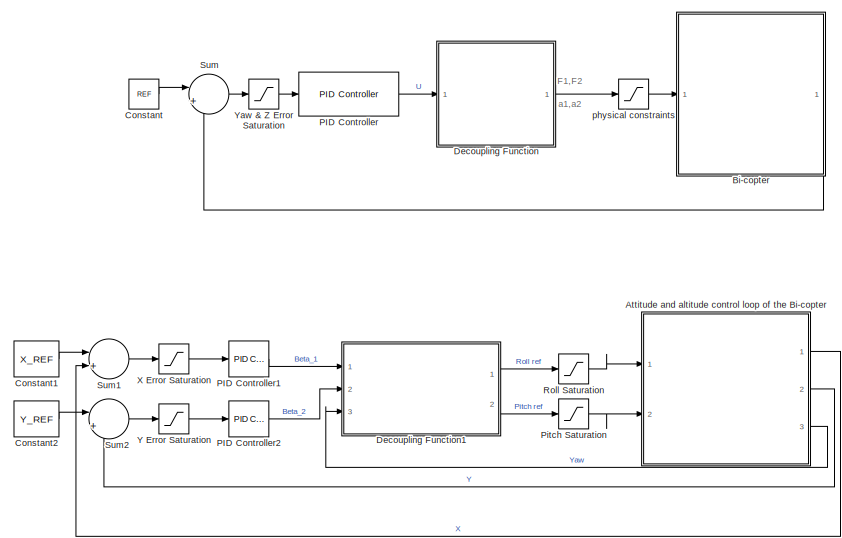
[diagram: root canvas - part 1/2, top center region]
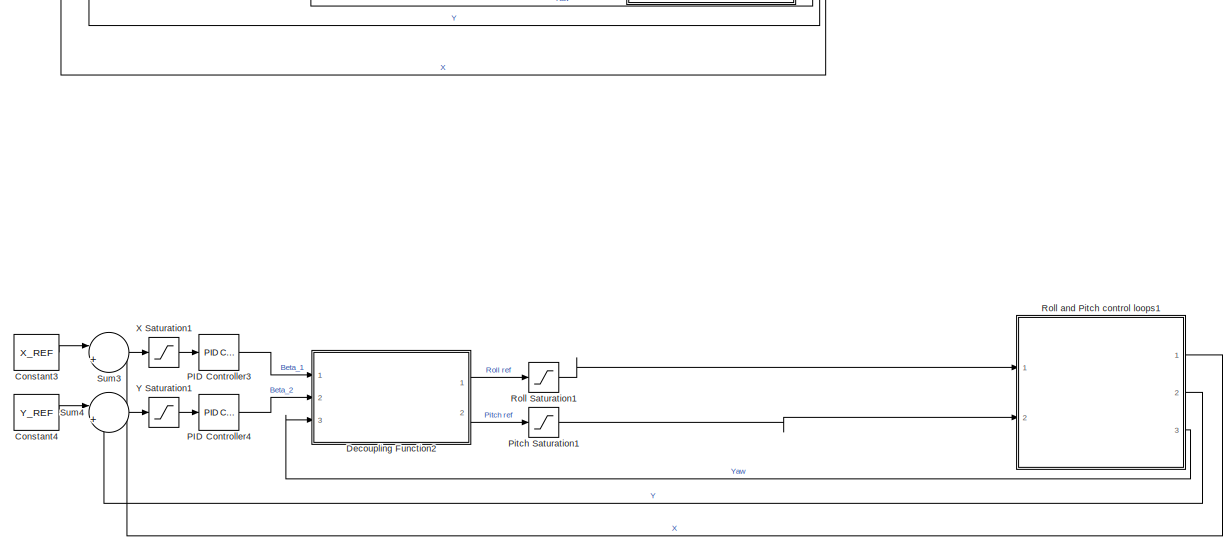
[diagram: root canvas - part 2/2, full width, bottom band]
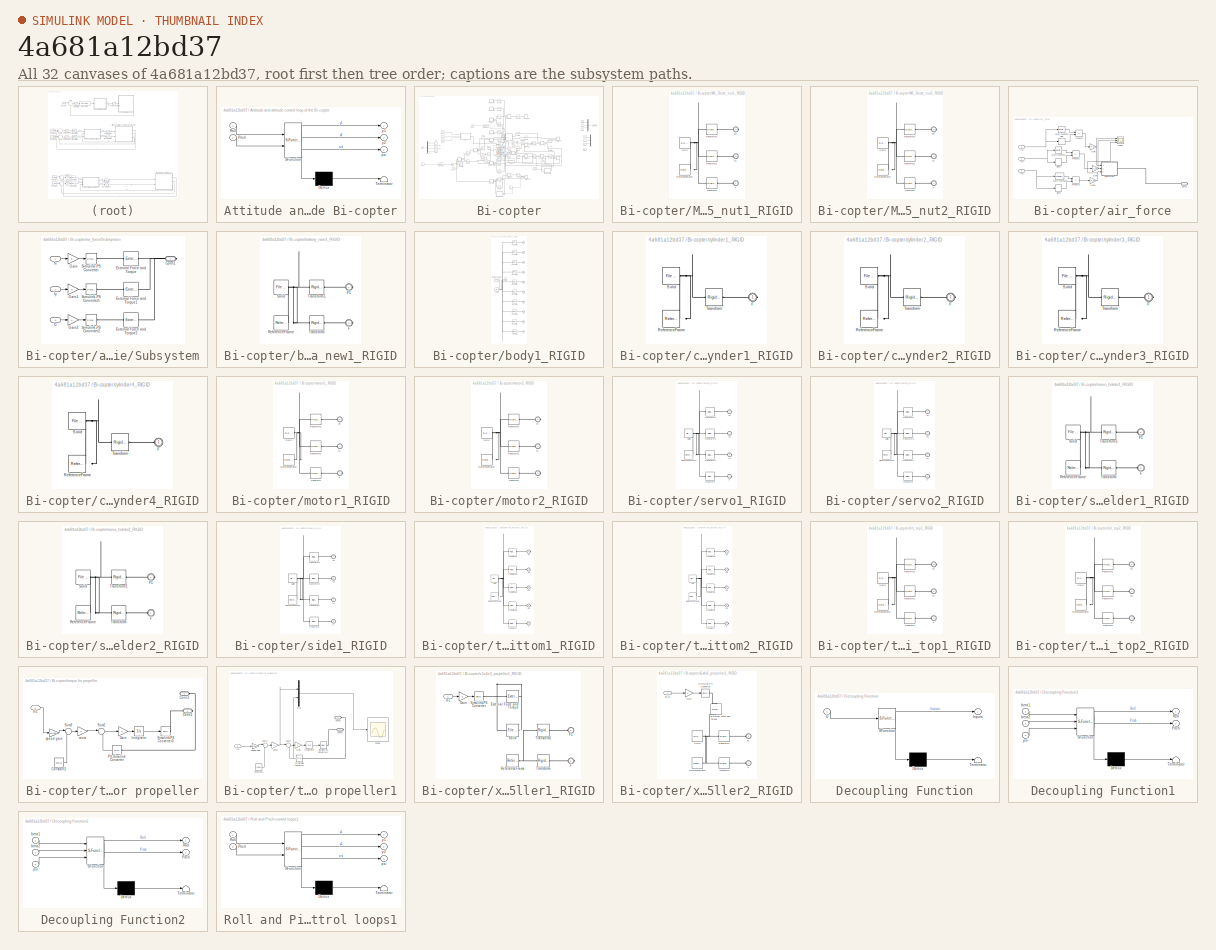
[diagram: thumbnail index - all 32 canvases of the model, root first then tree order]
MODEL slx_4a681a12bd37
KIND model
CONFIG AbsTol = auto
CONFIG EnableMultiTasking = off
CONFIG FixedStep = auto
CONFIG MaxStep = auto
CONFIG MinStep = auto
CONFIG RelTol = 1e-3
CONFIG SampleTimeConstraint = Unconstrained
CONFIG Solver = VariableStepAuto
CONFIG SolverName = VariableStepAuto
CONFIG StartTime = 0.0
CONFIG StopTime = 10.0
BLOCK [SubSystem] Attitude and altitude control loop of the Bi-copter
  ErrorFcn = Stateflow.Translate.translate
  PermitHierarchicalResolution = ExplicitOnly
  Ports = [2, 3]
  RequestExecContextInheritance = off
  SFBlockType = MATLAB Function
  TreatAsAtomicUnit = on
BLOCK [Demux] Attitude and altitude control loop of the Bi-copter/ Demux 
  Outputs = 1
  Ports = [1, 1]
BLOCK [S-Function] Attitude and altitude control loop of the Bi-copter/ SFunction 
  EnableBusSupport = off
  FunctionName = sf_sfun
  PortCounts = [2 4]
  Ports = [2, 4]
  SFcnIsStateOwnerBlock = off
  SFunctionDeploymentMode = off
  Tag = Stateflow S-Function 1
BLOCK [Terminator] Attitude and altitude control loop of the Bi-copter/ Terminator 
BLOCK [Inport] Attitude and altitude control loop of the Bi-copter/Pitch
  IconDisplay = Port number
  Port = 2
BLOCK [Inport] Attitude and altitude control loop of the Bi-copter/Roll
  IconDisplay = Port number
BLOCK [Outport] Attitude and altitude control loop of the Bi-copter/psi
  IconDisplay = Port number
  Port = 3
BLOCK [Outport] Attitude and altitude control loop of the Bi-copter/y1
  IconDisplay = Port number
BLOCK [Outport] Attitude and altitude control loop of the Bi-copter/y2
  IconDisplay = Port number
  Port = 2
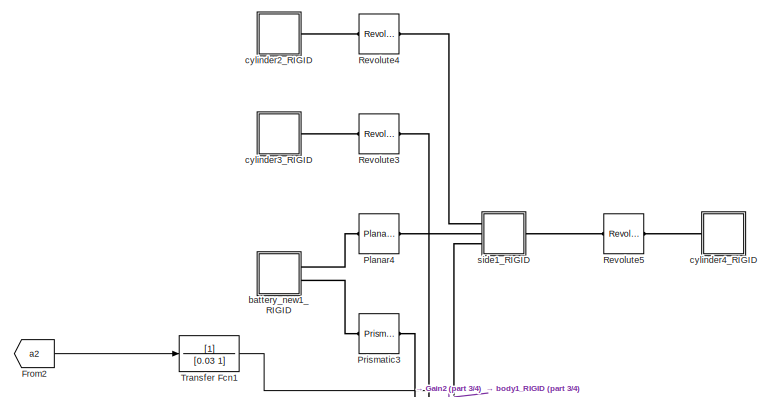
[diagram: Bi-copter - part 1/4, top center region]
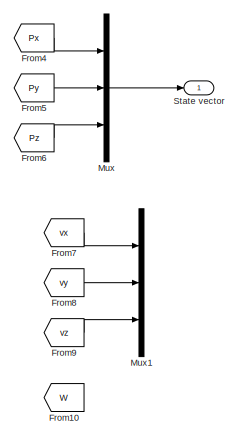
[diagram: Bi-copter - part 2/4, middle right region]
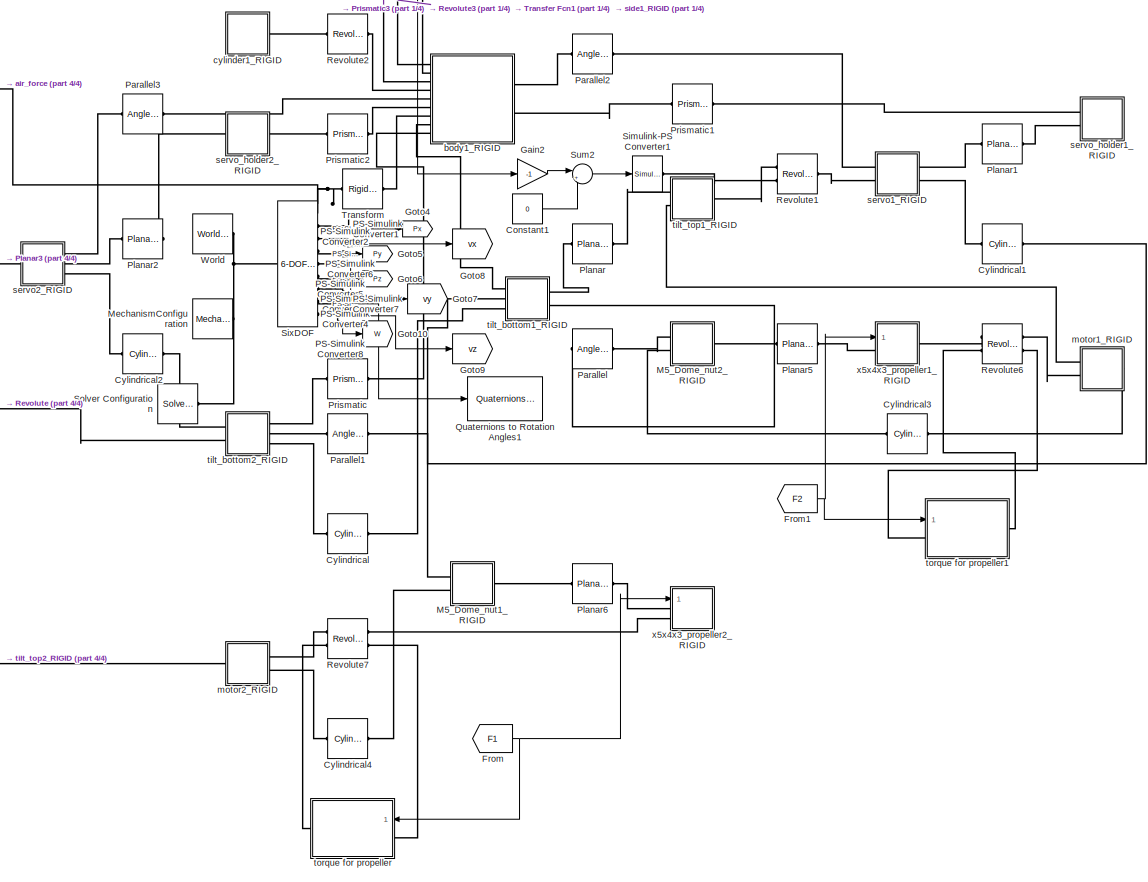
[diagram: Bi-copter - part 3/4, central region]
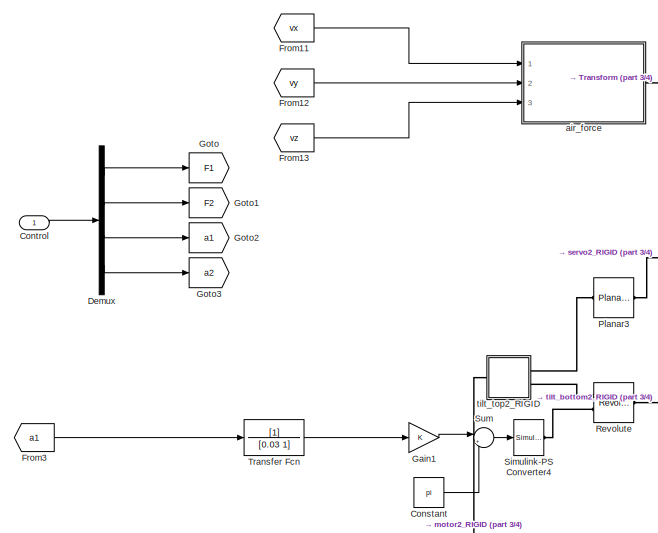
[diagram: Bi-copter - part 4/4, middle left region]
BLOCK [SubSystem] Bi-copter
  Ports = [1, 1]
  RequestExecContextInheritance = off
BLOCK [Constant] Bi-copter/Constant
  Value = pi
BLOCK [Constant] Bi-copter/Constant1
  Value = 0
BLOCK [Inport] Bi-copter/Control 
  IconDisplay = Port number
BLOCK [Reference] Bi-copter/Cylindrical  REF=sm_lib/Joints/Cylindrical
Joint
  Ports = [0, 0, 0, 0, 0, 1, 1]
  SourceBlock = sm_lib/Joints/Cylindrical\nJoint
  SourceProductBaseCode = MS
  SourceType = Cylindrical\nJoint
BLOCK [Reference] Bi-copter/Cylindrical1  REF=sm_lib/Joints/Cylindrical
Joint
  Ports = [0, 0, 0, 0, 0, 1, 1]
  SourceBlock = sm_lib/Joints/Cylindrical\nJoint
  SourceProductBaseCode = MS
  SourceType = Cylindrical\nJoint
BLOCK [Reference] Bi-copter/Cylindrical2  REF=sm_lib/Joints/Cylindrical
Joint
  Ports = [0, 0, 0, 0, 0, 1, 1]
  SourceBlock = sm_lib/Joints/Cylindrical\nJoint
  SourceProductBaseCode = MS
  SourceType = Cylindrical\nJoint
BLOCK [Reference] Bi-copter/Cylindrical3  REF=sm_lib/Joints/Cylindrical
Joint
  Ports = [0, 0, 0, 0, 0, 1, 1]
  SourceBlock = sm_lib/Joints/Cylindrical\nJoint
  SourceProductBaseCode = MS
  SourceType = Cylindrical\nJoint
BLOCK [Reference] Bi-copter/Cylindrical4  REF=sm_lib/Joints/Cylindrical
Joint
  Ports = [0, 0, 0, 0, 0, 1, 1]
  SourceBlock = sm_lib/Joints/Cylindrical\nJoint
  SourceProductBaseCode = MS
  SourceType = Cylindrical\nJoint
BLOCK [Demux] Bi-copter/Demux
  DisplayOption = bar
  Ports = [1, 4]
BLOCK [From] Bi-copter/From
  GotoTag = F1
BLOCK [From] Bi-copter/From1
  GotoTag = F2
BLOCK [From] Bi-copter/From10
  Commented = on
  GotoTag = W
BLOCK [From] Bi-copter/From11
  GotoTag = vx
BLOCK [From] Bi-copter/From12
  GotoTag = vy
BLOCK [From] Bi-copter/From13
  GotoTag = vz
BLOCK [From] Bi-copter/From2
  GotoTag = a2
BLOCK [From] Bi-copter/From3
  GotoTag = a1
BLOCK [From] Bi-copter/From4
  GotoTag = Px
BLOCK [From] Bi-copter/From5
  GotoTag = Py
BLOCK [From] Bi-copter/From6
  GotoTag = Pz
BLOCK [From] Bi-copter/From7
  Commented = on
  GotoTag = vx
BLOCK [From] Bi-copter/From8
  Commented = on
  GotoTag = vy
BLOCK [From] Bi-copter/From9
  Commented = on
  GotoTag = vz
BLOCK [Gain] Bi-copter/Gain1
  OutDataTypeStr = Inherit: Inherit via internal rule
  ParamDataTypeStr = Inherit: Inherit via internal rule
  SaturateOnIntegerOverflow = off
BLOCK [Gain] Bi-copter/Gain2
  Gain = -1
  OutDataTypeStr = Inherit: Inherit via internal rule
  ParamDataTypeStr = Inherit: Inherit via internal rule
  SaturateOnIntegerOverflow = off
BLOCK [Goto] Bi-copter/Goto
  GotoTag = F1
BLOCK [Goto] Bi-copter/Goto1
  GotoTag = F2
BLOCK [Goto] Bi-copter/Goto10
  GotoTag = W
BLOCK [Goto] Bi-copter/Goto2
  GotoTag = a1
BLOCK [Goto] Bi-copter/Goto3
  GotoTag = a2
BLOCK [Goto] Bi-copter/Goto4
  GotoTag = Px
BLOCK [Goto] Bi-copter/Goto5
  GotoTag = Py
BLOCK [Goto] Bi-copter/Goto6
  GotoTag = Pz
BLOCK [Goto] Bi-copter/Goto7
  GotoTag = vy
BLOCK [Goto] Bi-copter/Goto8
  GotoTag = vx
BLOCK [Goto] Bi-copter/Goto9
  GotoTag = vz
BLOCK [SubSystem] Bi-copter/M5_Dome_nut1_RIGID
  Ports = [0, 0, 0, 0, 0, 2, 1]
  RequestExecContextInheritance = off
BLOCK [PMIOPort] Bi-copter/M5_Dome_nut1_RIGID/F
  Side = Left
BLOCK [PMIOPort] Bi-copter/M5_Dome_nut1_RIGID/F1
  Port = 2
  Side = Left
BLOCK [PMIOPort] Bi-copter/M5_Dome_nut1_RIGID/F2
  Port = 3
  Side = Right
BLOCK [Reference] Bi-copter/M5_Dome_nut1_RIGID/ReferenceFrame  REF=sm_lib/Frames and
Transforms/Reference
Frame
  Ports = [0, 0, 0, 0, 0, 0, 1]
  SourceBlock = sm_lib/Frames and\nTransforms/Reference\nFrame
  SourceProductBaseCode = MS
  SourceType = Reference\nFrame
BLOCK [Reference] Bi-copter/M5_Dome_nut1_RIGID/Solid  REF=sm_lib/Body Elements/File Solid
  Ports = [0, 0, 0, 0, 0, 0, 1]
  SourceBlock = sm_lib/Body Elements/File Solid
  SourceProductBaseCode = MS
  SourceType = File Solid
BLOCK [Reference] Bi-copter/M5_Dome_nut1_RIGID/Transform  REF=sm_lib/Frames and
Transforms/Rigid
Transform
  Ports = [0, 0, 0, 0, 0, 1, 1]
  SourceBlock = sm_lib/Frames and\nTransforms/Rigid\nTransform
  SourceProductBaseCode = MS
  SourceType = Rigid\nTransform
BLOCK [Reference] Bi-copter/M5_Dome_nut1_RIGID/Transform1  REF=sm_lib/Frames and
Transforms/Rigid
Transform
  Ports = [0, 0, 0, 0, 0, 1, 1]
  SourceBlock = sm_lib/Frames and\nTransforms/Rigid\nTransform
  SourceProductBaseCode = MS
  SourceType = Rigid\nTransform
BLOCK [Reference] Bi-copter/M5_Dome_nut1_RIGID/Transform2  REF=sm_lib/Frames and
Transforms/Rigid
Transform
  Ports = [0, 0, 0, 0, 0, 1, 1]
  SourceBlock = sm_lib/Frames and\nTransforms/Rigid\nTransform
  SourceProductBaseCode = MS
  SourceType = Rigid\nTransform
BLOCK [SubSystem] Bi-copter/M5_Dome_nut2_RIGID
  Ports = [0, 0, 0, 0, 0, 2, 1]
  RequestExecContextInheritance = off
BLOCK [PMIOPort] Bi-copter/M5_Dome_nut2_RIGID/F
  Side = Left
BLOCK [PMIOPort] Bi-copter/M5_Dome_nut2_RIGID/F1
  Port = 2
  Side = Left
BLOCK [PMIOPort] Bi-copter/M5_Dome_nut2_RIGID/F2
  Port = 3
  Side = Right
BLOCK [Reference] Bi-copter/M5_Dome_nut2_RIGID/ReferenceFrame  REF=sm_lib/Frames and
Transforms/Reference
Frame
  Ports = [0, 0, 0, 0, 0, 0, 1]
  SourceBlock = sm_lib/Frames and\nTransforms/Reference\nFrame
  SourceProductBaseCode = MS
  SourceType = Reference\nFrame
BLOCK [Reference] Bi-copter/M5_Dome_nut2_RIGID/Solid  REF=sm_lib/Body Elements/File Solid
  Ports = [0, 0, 0, 0, 0, 0, 1]
  SourceBlock = sm_lib/Body Elements/File Solid
  SourceProductBaseCode = MS
  SourceType = File Solid
BLOCK [Reference] Bi-copter/M5_Dome_nut2_RIGID/Transform  REF=sm_lib/Frames and
Transforms/Rigid
Transform
  Ports = [0, 0, 0, 0, 0, 1, 1]
  SourceBlock = sm_lib/Frames and\nTransforms/Rigid\nTransform
  SourceProductBaseCode = MS
  SourceType = Rigid\nTransform
BLOCK [Reference] Bi-copter/M5_Dome_nut2_RIGID/Transform1  REF=sm_lib/Frames and
Transforms/Rigid
Transform
  Ports = [0, 0, 0, 0, 0, 1, 1]
  SourceBlock = sm_lib/Frames and\nTransforms/Rigid\nTransform
  SourceProductBaseCode = MS
  SourceType = Rigid\nTransform
BLOCK [Reference] Bi-copter/M5_Dome_nut2_RIGID/Transform2  REF=sm_lib/Frames and
Transforms/Rigid
Transform
  Ports = [0, 0, 0, 0, 0, 1, 1]
  SourceBlock = sm_lib/Frames and\nTransforms/Rigid\nTransform
  SourceProductBaseCode = MS
  SourceType = Rigid\nTransform
BLOCK [Reference] Bi-copter/MechanismConfiguration  REF=sm_lib/Utilities/Mechanism
Configuration
  Ports = [0, 0, 0, 0, 0, 0, 1]
  SourceBlock = sm_lib/Utilities/Mechanism\nConfiguration
  SourceProductBaseCode = MS
  SourceType = Mechanism\nConfiguration
BLOCK [Mux] Bi-copter/Mux
  DisplayOption = bar
  Inputs = 3
  Ports = [3, 1]
BLOCK [Mux] Bi-copter/Mux1
  Commented = on
  DisplayOption = bar
  Inputs = 3
  Ports = [3, 1]
BLOCK [Reference] Bi-copter/PS-Simulink Converter1  REF=nesl_utility/PS-Simulink
Converter
  Ports = [0, 1, 0, 0, 0, 1]
  SourceBlock = nesl_utility/PS-Simulink\nConverter
  SourceProductBaseCode = SS
  SourceType = PS-Simulink\nConverter
BLOCK [Reference] Bi-copter/PS-Simulink Converter2  REF=nesl_utility/PS-Simulink
Converter
  Ports = [0, 1, 0, 0, 0, 1]
  SourceBlock = nesl_utility/PS-Simulink\nConverter
  SourceProductBaseCode = SS
  SourceType = PS-Simulink\nConverter
BLOCK [Reference] Bi-copter/PS-Simulink Converter3  REF=nesl_utility/PS-Simulink
Converter
  Ports = [0, 1, 0, 0, 0, 1]
  SourceBlock = nesl_utility/PS-Simulink\nConverter
  SourceProductBaseCode = SS
  SourceType = PS-Simulink\nConverter
BLOCK [Reference] Bi-copter/PS-Simulink Converter4  REF=nesl_utility/PS-Simulink
Converter
  Ports = [0, 1, 0, 0, 0, 1]
  SourceBlock = nesl_utility/PS-Simulink\nConverter
  SourceProductBaseCode = SS
  SourceType = PS-Simulink\nConverter
BLOCK [Reference] Bi-copter/PS-Simulink Converter5  REF=nesl_utility/PS-Simulink
Converter
  Ports = [0, 1, 0, 0, 0, 1]
  SourceBlock = nesl_utility/PS-Simulink\nConverter
  SourceProductBaseCode = SS
  SourceType = PS-Simulink\nConverter
BLOCK [Reference] Bi-copter/PS-Simulink Converter6  REF=nesl_utility/PS-Simulink
Converter
  Ports = [0, 1, 0, 0, 0, 1]
  SourceBlock = nesl_utility/PS-Simulink\nConverter
  SourceProductBaseCode = SS
  SourceType = PS-Simulink\nConverter
BLOCK [Reference] Bi-copter/PS-Simulink Converter7  REF=nesl_utility/PS-Simulink
Converter
  Ports = [0, 1, 0, 0, 0, 1]
  SourceBlock = nesl_utility/PS-Simulink\nConverter
  SourceProductBaseCode = SS
  SourceType = PS-Simulink\nConverter
BLOCK [Reference] Bi-copter/PS-Simulink Converter8  REF=nesl_utility/PS-Simulink
Converter
  Ports = [0, 1, 0, 0, 0, 1]
  SourceBlock = nesl_utility/PS-Simulink\nConverter
  SourceProductBaseCode = SS
  SourceType = PS-Simulink\nConverter
BLOCK [Reference] Bi-copter/Parallel  REF=sm_lib/Constraints/Angle
Constraint
  Ports = [0, 0, 0, 0, 0, 1, 1]
  SourceBlock = sm_lib/Constraints/Angle\nConstraint
  SourceProductBaseCode = MS
  SourceType = Angle\nConstraint
BLOCK [Reference] Bi-copter/Parallel1  REF=sm_lib/Constraints/Angle
Constraint
  Ports = [0, 0, 0, 0, 0, 1, 1]
  SourceBlock = sm_lib/Constraints/Angle\nConstraint
  SourceProductBaseCode = MS
  SourceType = Angle\nConstraint
BLOCK [Reference] Bi-copter/Parallel2  REF=sm_lib/Constraints/Angle
Constraint
  Ports = [0, 0, 0, 0, 0, 1, 1]
  SourceBlock = sm_lib/Constraints/Angle\nConstraint
  SourceProductBaseCode = MS
  SourceType = Angle\nConstraint
BLOCK [Reference] Bi-copter/Parallel3  REF=sm_lib/Constraints/Angle
Constraint
  Ports = [0, 0, 0, 0, 0, 1, 1]
  SourceBlock = sm_lib/Constraints/Angle\nConstraint
  SourceProductBaseCode = MS
  SourceType = Angle\nConstraint
BLOCK [Reference] Bi-copter/Planar  REF=sm_lib/Joints/Planar Joint
  Ports = [0, 0, 0, 0, 0, 1, 1]
  SourceBlock = sm_lib/Joints/Planar Joint
  SourceProductBaseCode = MS
  SourceType = Planar Joint
BLOCK [Reference] Bi-copter/Planar1  REF=sm_lib/Joints/Planar Joint
  Ports = [0, 0, 0, 0, 0, 1, 1]
  SourceBlock = sm_lib/Joints/Planar Joint
  SourceProductBaseCode = MS
  SourceType = Planar Joint
BLOCK [Reference] Bi-copter/Planar2  REF=sm_lib/Joints/Planar Joint
  Ports = [0, 0, 0, 0, 0, 1, 1]
  SourceBlock = sm_lib/Joints/Planar Joint
  SourceProductBaseCode = MS
  SourceType = Planar Joint
BLOCK [Reference] Bi-copter/Planar3  REF=sm_lib/Joints/Planar Joint
  Ports = [0, 0, 0, 0, 0, 1, 1]
  SourceBlock = sm_lib/Joints/Planar Joint
  SourceProductBaseCode = MS
  SourceType = Planar Joint
BLOCK [Reference] Bi-copter/Planar4  REF=sm_lib/Joints/Planar Joint
  Ports = [0, 0, 0, 0, 0, 1, 1]
  SourceBlock = sm_lib/Joints/Planar Joint
  SourceProductBaseCode = MS
  SourceType = Planar Joint
BLOCK [Reference] Bi-copter/Planar5  REF=sm_lib/Joints/Planar Joint
  Ports = [0, 0, 0, 0, 0, 1, 1]
  SourceBlock = sm_lib/Joints/Planar Joint
  SourceProductBaseCode = MS
  SourceType = Planar Joint
BLOCK [Reference] Bi-copter/Planar6  REF=sm_lib/Joints/Planar Joint
  Ports = [0, 0, 0, 0, 0, 1, 1]
  SourceBlock = sm_lib/Joints/Planar Joint
  SourceProductBaseCode = MS
  SourceType = Planar Joint
BLOCK [Reference] Bi-copter/Prismatic  REF=sm_lib/Joints/Prismatic
Joint
  Ports = [0, 0, 0, 0, 0, 1, 1]
  SourceBlock = sm_lib/Joints/Prismatic\nJoint
  SourceProductBaseCode = MS
  SourceType = Prismatic\nJoint
BLOCK [Reference] Bi-copter/Prismatic1  REF=sm_lib/Joints/Prismatic
Joint
  Ports = [0, 0, 0, 0, 0, 1, 1]
  SourceBlock = sm_lib/Joints/Prismatic\nJoint
  SourceProductBaseCode = MS
  SourceType = Prismatic\nJoint
BLOCK [Reference] Bi-copter/Prismatic2  REF=sm_lib/Joints/Prismatic
Joint
  Ports = [0, 0, 0, 0, 0, 1, 1]
  SourceBlock = sm_lib/Joints/Prismatic\nJoint
  SourceProductBaseCode = MS
  SourceType = Prismatic\nJoint
BLOCK [Reference] Bi-copter/Prismatic3  REF=sm_lib/Joints/Prismatic
Joint
  Ports = [0, 0, 0, 0, 0, 1, 1]
  SourceBlock = sm_lib/Joints/Prismatic\nJoint
  SourceProductBaseCode = MS
  SourceType = Prismatic\nJoint
BLOCK [Reference] Bi-copter/Quaternions to Rotation Angles1  REF=sharedtransform/Quaternions to Rotation Angles
  AttributesFormatString = Rotation Order: %<rotationOrder>
  Ports = [1, 1]
  SourceBlock = sharedtransform/Quaternions to Rotation Angles
  SourceProductBaseCode = AE,PW,MT,VE,VP
  SourceType = Quat2Ang
BLOCK [Reference] Bi-copter/Revolute  REF=sm_lib/Joints/Revolute Joint
  Ports = [0, 0, 0, 0, 0, 2, 1]
  SourceBlock = sm_lib/Joints/Revolute Joint
  SourceProductBaseCode = MS
  SourceType = Revolute Joint
BLOCK [Reference] Bi-copter/Revolute1  REF=sm_lib/Joints/Revolute Joint
  Ports = [0, 0, 0, 0, 0, 2, 1]
  SourceBlock = sm_lib/Joints/Revolute Joint
  SourceProductBaseCode = MS
  SourceType = Revolute Joint
BLOCK [Reference] Bi-copter/Revolute2  REF=sm_lib/Joints/Revolute Joint
  Ports = [0, 0, 0, 0, 0, 1, 1]
  SourceBlock = sm_lib/Joints/Revolute Joint
  SourceProductBaseCode = MS
  SourceType = Revolute Joint
BLOCK [Reference] Bi-copter/Revolute3  REF=sm_lib/Joints/Revolute Joint
  Ports = [0, 0, 0, 0, 0, 1, 1]
  SourceBlock = sm_lib/Joints/Revolute Joint
  SourceProductBaseCode = MS
  SourceType = Revolute Joint
BLOCK [Reference] Bi-copter/Revolute4  REF=sm_lib/Joints/Revolute Joint
  Ports = [0, 0, 0, 0, 0, 1, 1]
  SourceBlock = sm_lib/Joints/Revolute Joint
  SourceProductBaseCode = MS
  SourceType = Revolute Joint
BLOCK [Reference] Bi-copter/Revolute5  REF=sm_lib/Joints/Revolute Joint
  Ports = [0, 0, 0, 0, 0, 1, 1]
  SourceBlock = sm_lib/Joints/Revolute Joint
  SourceProductBaseCode = MS
  SourceType = Revolute Joint
BLOCK [Reference] Bi-copter/Revolute6  REF=sm_lib/Joints/Revolute Joint
  Ports = [0, 0, 0, 0, 0, 2, 2]
  SourceBlock = sm_lib/Joints/Revolute Joint
  SourceProductBaseCode = MS
  SourceType = Revolute Joint
BLOCK [Reference] Bi-copter/Revolute7  REF=sm_lib/Joints/Revolute Joint
  Ports = [0, 0, 0, 0, 0, 2, 2]
  SourceBlock = sm_lib/Joints/Revolute Joint
  SourceProductBaseCode = MS
  SourceType = Revolute Joint
BLOCK [Reference] Bi-copter/Simulink-PS Converter1  REF=nesl_utility/Simulink-PS
Converter
  Ports = [1, 0, 0, 0, 0, 0, 1]
  SourceBlock = nesl_utility/Simulink-PS\nConverter
  SourceProductBaseCode = SS
  SourceType = Simulink-PS\nConverter
BLOCK [Reference] Bi-copter/Simulink-PS Converter4  REF=nesl_utility/Simulink-PS
Converter
  Ports = [1, 0, 0, 0, 0, 0, 1]
  SourceBlock = nesl_utility/Simulink-PS\nConverter
  SourceProductBaseCode = SS
  SourceType = Simulink-PS\nConverter
BLOCK [Reference] Bi-copter/SixDOF  REF=sm_lib/Joints/6-DOF Joint
  Ports = [0, 0, 0, 0, 0, 1, 9]
  SourceBlock = sm_lib/Joints/6-DOF Joint
  SourceProductBaseCode = MS
  SourceType = 6-DOF Joint
BLOCK [Reference] Bi-copter/Solver Configuration  REF=nesl_utility/Solver
Configuration
  Ports = [0, 0, 0, 0, 0, 0, 1]
  SourceBlock = nesl_utility/Solver\nConfiguration
  SourceProductBaseCode = SS
  SourceType = Solver\nConfiguration
BLOCK [Outport] Bi-copter/State vector
  IconDisplay = Port number
BLOCK [Sum] Bi-copter/Sum
  IconShape = round
  InputSameDT = off
  Inputs = |++
  OutDataTypeStr = Inherit: Inherit via internal rule
  Ports = [2, 1]
  SaturateOnIntegerOverflow = off
BLOCK [Sum] Bi-copter/Sum2
  IconShape = round
  InputSameDT = off
  Inputs = |++
  OutDataTypeStr = Inherit: Inherit via internal rule
  Ports = [2, 1]
  SaturateOnIntegerOverflow = off
BLOCK [TransferFcn] Bi-copter/Transfer Fcn
  Denominator = [0.03 1]
BLOCK [TransferFcn] Bi-copter/Transfer Fcn1
  Denominator = [0.03 1]
BLOCK [Reference] Bi-copter/Transform  REF=sm_lib/Frames and
Transforms/Rigid
Transform
  Ports = [0, 0, 0, 0, 0, 1, 1]
  SourceBlock = sm_lib/Frames and\nTransforms/Rigid\nTransform
  SourceProductBaseCode = MS
  SourceType = Rigid\nTransform
BLOCK [Reference] Bi-copter/World  REF=sm_lib/Frames and
Transforms/World Frame
  Ports = [0, 0, 0, 0, 0, 0, 1]
  SourceBlock = sm_lib/Frames and\nTransforms/World Frame
  SourceProductBaseCode = MS
  SourceType = World Frame
BLOCK [SubSystem] Bi-copter/air_force
  Ports = [3, 0, 0, 0, 0, 0, 1]
  RequestExecContextInheritance = off
BLOCK [PMIOPort] Bi-copter/air_force/Conn1
  Side = Right
BLOCK [Gain] Bi-copter/air_force/Gain
  Gain = -C_air
  OutDataTypeStr = Inherit: Inherit via internal rule
  ParamDataTypeStr = Inherit: Inherit via internal rule
  SaturateOnIntegerOverflow = off
BLOCK [Gain] Bi-copter/air_force/Gain3
  Gain = -C_air
  OutDataTypeStr = Inherit: Inherit via internal rule
  ParamDataTypeStr = Inherit: Inherit via internal rule
  SaturateOnIntegerOverflow = off
BLOCK [Gain] Bi-copter/air_force/Gain4
  Gain = -C_air
  OutDataTypeStr = Inherit: Inherit via internal rule
  ParamDataTypeStr = Inherit: Inherit via internal rule
  SaturateOnIntegerOverflow = off
BLOCK [Inport] Bi-copter/air_force/In1
  IconDisplay = Port number
BLOCK [Inport] Bi-copter/air_force/In2
  IconDisplay = Port number
  Port = 2
BLOCK [Inport] Bi-copter/air_force/In3
  IconDisplay = Port number
  Port = 3
BLOCK [Math] Bi-copter/air_force/Math Function
  Operator = magnitude^2
  Ports = [1, 1]
  SignedPower = off
BLOCK [Math] Bi-copter/air_force/Math Function1
  Operator = magnitude^2
  Ports = [1, 1]
  SignedPower = off
BLOCK [Math] Bi-copter/air_force/Math Function2
  Operator = magnitude^2
  Ports = [1, 1]
  SignedPower = off
BLOCK [Product] Bi-copter/air_force/Product
  InputSameDT = off
  OutDataTypeStr = Inherit: Inherit via internal rule
  Ports = [2, 1]
  RndMeth = Floor
  SaturateOnIntegerOverflow = off
BLOCK [Product] Bi-copter/air_force/Product1
  InputSameDT = off
  OutDataTypeStr = Inherit: Inherit via internal rule
  Ports = [2, 1]
  RndMeth = Floor
  SaturateOnIntegerOverflow = off
BLOCK [Product] Bi-copter/air_force/Product2
  InputSameDT = off
  OutDataTypeStr = Inherit: Inherit via internal rule
  Ports = [2, 1]
  RndMeth = Floor
  SaturateOnIntegerOverflow = off
BLOCK [Scope] Bi-copter/air_force/Scope
  Floating = off
  NumInputPorts = 3
  Ports = [3]
  ScopeSpecificationString = Simulink.scopes.TimeScopeBlockCfg('CurrentConfiguration', extmgr.ConfigurationSet(extmgr.Configuration('Core','General UI',true),extmgr.Configuration('Core','Source UI',true),extmgr.Configuration('Sources','WiredSimulink',true,'DataLoggingVariableName','ScopeData1'),extmgr.Configuration('Visuals','Time Domain',true,'SerializedDisplays',{struct('MinYLimReal','-0.01048','MaxYLimReal','0.06755','YLab...<+1406ch>
BLOCK [Signum] Bi-copter/air_force/Sign
BLOCK [Signum] Bi-copter/air_force/Sign1
BLOCK [Signum] Bi-copter/air_force/Sign2
BLOCK [SubSystem] Bi-copter/air_force/Subsystem
  Ports = [3, 0, 0, 0, 0, 0, 1]
  RequestExecContextInheritance = off
BLOCK [PMIOPort] Bi-copter/air_force/Subsystem/Conn1
  Side = Right
BLOCK [Reference] Bi-copter/air_force/Subsystem/External Force and Torque  REF=sm_lib/Forces and
Torques/External Force
and Torque
  Ports = [0, 0, 0, 0, 0, 1, 1]
  SourceBlock = sm_lib/Forces and\nTorques/External Force\nand Torque
  SourceProductBaseCode = MS
  SourceType = External Force\nand Torque
BLOCK [Reference] Bi-copter/air_force/Subsystem/External Force and Torque1  REF=sm_lib/Forces and
Torques/External Force
and Torque
  Ports = [0, 0, 0, 0, 0, 1, 1]
  SourceBlock = sm_lib/Forces and\nTorques/External Force\nand Torque
  SourceProductBaseCode = MS
  SourceType = External Force\nand Torque
BLOCK [Reference] Bi-copter/air_force/Subsystem/External Force and Torque2  REF=sm_lib/Forces and
Torques/External Force
and Torque
  Ports = [0, 0, 0, 0, 0, 1, 1]
  SourceBlock = sm_lib/Forces and\nTorques/External Force\nand Torque
  SourceProductBaseCode = MS
  SourceType = External Force\nand Torque
BLOCK [Gain] Bi-copter/air_force/Subsystem/Gain
  OutDataTypeStr = Inherit: Inherit via internal rule
  ParamDataTypeStr = Inherit: Inherit via internal rule
  SaturateOnIntegerOverflow = off
BLOCK [Gain] Bi-copter/air_force/Subsystem/Gain1
  OutDataTypeStr = Inherit: Inherit via internal rule
  ParamDataTypeStr = Inherit: Inherit via internal rule
  SaturateOnIntegerOverflow = off
BLOCK [Gain] Bi-copter/air_force/Subsystem/Gain2
  OutDataTypeStr = Inherit: Inherit via internal rule
  ParamDataTypeStr = Inherit: Inherit via internal rule
  SaturateOnIntegerOverflow = off
BLOCK [Reference] Bi-copter/air_force/Subsystem/Simulink-PS Converter  REF=nesl_utility/Simulink-PS
Converter
  Ports = [1, 0, 0, 0, 0, 0, 1]
  SourceBlock = nesl_utility/Simulink-PS\nConverter
  SourceProductBaseCode = SS
  SourceType = Simulink-PS\nConverter
BLOCK [Reference] Bi-copter/air_force/Subsystem/Simulink-PS Converter1  REF=nesl_utility/Simulink-PS
Converter
  Ports = [1, 0, 0, 0, 0, 0, 1]
  SourceBlock = nesl_utility/Simulink-PS\nConverter
  SourceProductBaseCode = SS
  SourceType = Simulink-PS\nConverter
BLOCK [Reference] Bi-copter/air_force/Subsystem/Simulink-PS Converter2  REF=nesl_utility/Simulink-PS
Converter
  Ports = [1, 0, 0, 0, 0, 0, 1]
  SourceBlock = nesl_utility/Simulink-PS\nConverter
  SourceProductBaseCode = SS
  SourceType = Simulink-PS\nConverter
BLOCK [Inport] Bi-copter/air_force/Subsystem/fx
  IconDisplay = Port number
BLOCK [Inport] Bi-copter/air_force/Subsystem/fy
  IconDisplay = Port number
  Port = 2
BLOCK [Inport] Bi-copter/air_force/Subsystem/fz
  IconDisplay = Port number
  Port = 3
BLOCK [SubSystem] Bi-copter/battery_new1_RIGID
  Ports = [0, 0, 0, 0, 0, 0, 2]
  RequestExecContextInheritance = off
BLOCK [PMIOPort] Bi-copter/battery_new1_RIGID/F
  Port = 2
  Side = Right
BLOCK [PMIOPort] Bi-copter/battery_new1_RIGID/F1
  Side = Right
BLOCK [Reference] Bi-copter/battery_new1_RIGID/ReferenceFrame  REF=sm_lib/Frames and
Transforms/Reference
Frame
  Ports = [0, 0, 0, 0, 0, 0, 1]
  SourceBlock = sm_lib/Frames and\nTransforms/Reference\nFrame
  SourceProductBaseCode = MS
  SourceType = Reference\nFrame
BLOCK [Reference] Bi-copter/battery_new1_RIGID/Solid  REF=sm_lib/Body Elements/File Solid
  Ports = [0, 0, 0, 0, 0, 0, 1]
  SourceBlock = sm_lib/Body Elements/File Solid
  SourceProductBaseCode = MS
  SourceType = File Solid
BLOCK [Reference] Bi-copter/battery_new1_RIGID/Transform  REF=sm_lib/Frames and
Transforms/Rigid
Transform
  Ports = [0, 0, 0, 0, 0, 1, 1]
  SourceBlock = sm_lib/Frames and\nTransforms/Rigid\nTransform
  SourceProductBaseCode = MS
  SourceType = Rigid\nTransform
BLOCK [Reference] Bi-copter/battery_new1_RIGID/Transform1  REF=sm_lib/Frames and
Transforms/Rigid
Transform
  Ports = [0, 0, 0, 0, 0, 1, 1]
  SourceBlock = sm_lib/Frames and\nTransforms/Rigid\nTransform
  SourceProductBaseCode = MS
  SourceType = Rigid\nTransform
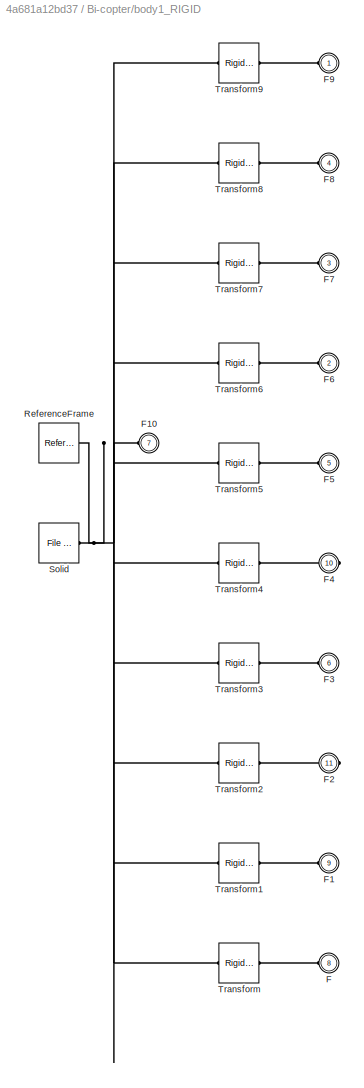
BLOCK [SubSystem] Bi-copter/body1_RIGID
  Ports = [0, 0, 0, 0, 0, 9, 2]
  RequestExecContextInheritance = off
BLOCK [PMIOPort] Bi-copter/body1_RIGID/F
  Port = 8
  Side = Left
BLOCK [PMIOPort] Bi-copter/body1_RIGID/F1
  Port = 9
  Side = Left
BLOCK [PMIOPort] Bi-copter/body1_RIGID/F10
  Port = 7
  Side = Left
BLOCK [PMIOPort] Bi-copter/body1_RIGID/F2
  Port = 11
  Side = Right
BLOCK [PMIOPort] Bi-copter/body1_RIGID/F3
  Port = 6
  Side = Left
BLOCK [PMIOPort] Bi-copter/body1_RIGID/F4
  Port = 10
  Side = Right
BLOCK [PMIOPort] Bi-copter/body1_RIGID/F5
  Port = 5
  Side = Left
BLOCK [PMIOPort] Bi-copter/body1_RIGID/F6
  Port = 2
  Side = Left
BLOCK [PMIOPort] Bi-copter/body1_RIGID/F7
  Port = 3
  Side = Left
BLOCK [PMIOPort] Bi-copter/body1_RIGID/F8
  Port = 4
  Side = Left
BLOCK [PMIOPort] Bi-copter/body1_RIGID/F9
  Side = Left
BLOCK [Reference] Bi-copter/body1_RIGID/ReferenceFrame  REF=sm_lib/Frames and
Transforms/Reference
Frame
  Ports = [0, 0, 0, 0, 0, 0, 1]
  SourceBlock = sm_lib/Frames and\nTransforms/Reference\nFrame
  SourceProductBaseCode = MS
  SourceType = Reference\nFrame
BLOCK [Reference] Bi-copter/body1_RIGID/Solid  REF=sm_lib/Body Elements/File Solid
  Ports = [0, 0, 0, 0, 0, 0, 1]
  SourceBlock = sm_lib/Body Elements/File Solid
  SourceProductBaseCode = MS
  SourceType = File Solid
BLOCK [Reference] Bi-copter/body1_RIGID/Transform  REF=sm_lib/Frames and
Transforms/Rigid
Transform
  Ports = [0, 0, 0, 0, 0, 1, 1]
  SourceBlock = sm_lib/Frames and\nTransforms/Rigid\nTransform
  SourceProductBaseCode = MS
  SourceType = Rigid\nTransform
BLOCK [Reference] Bi-copter/body1_RIGID/Transform1  REF=sm_lib/Frames and
Transforms/Rigid
Transform
  Ports = [0, 0, 0, 0, 0, 1, 1]
  SourceBlock = sm_lib/Frames and\nTransforms/Rigid\nTransform
  SourceProductBaseCode = MS
  SourceType = Rigid\nTransform
BLOCK [Reference] Bi-copter/body1_RIGID/Transform2  REF=sm_lib/Frames and
Transforms/Rigid
Transform
  Ports = [0, 0, 0, 0, 0, 1, 1]
  SourceBlock = sm_lib/Frames and\nTransforms/Rigid\nTransform
  SourceProductBaseCode = MS
  SourceType = Rigid\nTransform
BLOCK [Reference] Bi-copter/body1_RIGID/Transform3  REF=sm_lib/Frames and
Transforms/Rigid
Transform
  Ports = [0, 0, 0, 0, 0, 1, 1]
  SourceBlock = sm_lib/Frames and\nTransforms/Rigid\nTransform
  SourceProductBaseCode = MS
  SourceType = Rigid\nTransform
BLOCK [Reference] Bi-copter/body1_RIGID/Transform4  REF=sm_lib/Frames and
Transforms/Rigid
Transform
  Ports = [0, 0, 0, 0, 0, 1, 1]
  SourceBlock = sm_lib/Frames and\nTransforms/Rigid\nTransform
  SourceProductBaseCode = MS
  SourceType = Rigid\nTransform
BLOCK [Reference] Bi-copter/body1_RIGID/Transform5  REF=sm_lib/Frames and
Transforms/Rigid
Transform
  Ports = [0, 0, 0, 0, 0, 1, 1]
  SourceBlock = sm_lib/Frames and\nTransforms/Rigid\nTransform
  SourceProductBaseCode = MS
  SourceType = Rigid\nTransform
BLOCK [Reference] Bi-copter/body1_RIGID/Transform6  REF=sm_lib/Frames and
Transforms/Rigid
Transform
  Ports = [0, 0, 0, 0, 0, 1, 1]
  SourceBlock = sm_lib/Frames and\nTransforms/Rigid\nTransform
  SourceProductBaseCode = MS
  SourceType = Rigid\nTransform
BLOCK [Reference] Bi-copter/body1_RIGID/Transform7  REF=sm_lib/Frames and
Transforms/Rigid
Transform
  Ports = [0, 0, 0, 0, 0, 1, 1]
  SourceBlock = sm_lib/Frames and\nTransforms/Rigid\nTransform
  SourceProductBaseCode = MS
  SourceType = Rigid\nTransform
BLOCK [Reference] Bi-copter/body1_RIGID/Transform8  REF=sm_lib/Frames and
Transforms/Rigid
Transform
  Ports = [0, 0, 0, 0, 0, 1, 1]
  SourceBlock = sm_lib/Frames and\nTransforms/Rigid\nTransform
  SourceProductBaseCode = MS
  SourceType = Rigid\nTransform
BLOCK [Reference] Bi-copter/body1_RIGID/Transform9  REF=sm_lib/Frames and
Transforms/Rigid
Transform
  Ports = [0, 0, 0, 0, 0, 1, 1]
  SourceBlock = sm_lib/Frames and\nTransforms/Rigid\nTransform
  SourceProductBaseCode = MS
  SourceType = Rigid\nTransform
BLOCK [SubSystem] Bi-copter/cylinder1_RIGID
  Ports = [0, 0, 0, 0, 0, 0, 1]
  RequestExecContextInheritance = off
BLOCK [PMIOPort] Bi-copter/cylinder1_RIGID/F
  Side = Right
BLOCK [Reference] Bi-copter/cylinder1_RIGID/ReferenceFrame  REF=sm_lib/Frames and
Transforms/Reference
Frame
  Ports = [0, 0, 0, 0, 0, 0, 1]
  SourceBlock = sm_lib/Frames and\nTransforms/Reference\nFrame
  SourceProductBaseCode = MS
  SourceType = Reference\nFrame
BLOCK [Reference] Bi-copter/cylinder1_RIGID/Solid  REF=sm_lib/Body Elements/File Solid
  Ports = [0, 0, 0, 0, 0, 0, 1]
  SourceBlock = sm_lib/Body Elements/File Solid
  SourceProductBaseCode = MS
  SourceType = File Solid
BLOCK [Reference] Bi-copter/cylinder1_RIGID/Transform  REF=sm_lib/Frames and
Transforms/Rigid
Transform
  Ports = [0, 0, 0, 0, 0, 1, 1]
  SourceBlock = sm_lib/Frames and\nTransforms/Rigid\nTransform
  SourceProductBaseCode = MS
  SourceType = Rigid\nTransform
BLOCK [SubSystem] Bi-copter/cylinder2_RIGID
  Ports = [0, 0, 0, 0, 0, 0, 1]
  RequestExecContextInheritance = off
BLOCK [PMIOPort] Bi-copter/cylinder2_RIGID/F
  Side = Right
BLOCK [Reference] Bi-copter/cylinder2_RIGID/ReferenceFrame  REF=sm_lib/Frames and
Transforms/Reference
Frame
  Ports = [0, 0, 0, 0, 0, 0, 1]
  SourceBlock = sm_lib/Frames and\nTransforms/Reference\nFrame
  SourceProductBaseCode = MS
  SourceType = Reference\nFrame
BLOCK [Reference] Bi-copter/cylinder2_RIGID/Solid  REF=sm_lib/Body Elements/File Solid
  Ports = [0, 0, 0, 0, 0, 0, 1]
  SourceBlock = sm_lib/Body Elements/File Solid
  SourceProductBaseCode = MS
  SourceType = File Solid
BLOCK [Reference] Bi-copter/cylinder2_RIGID/Transform  REF=sm_lib/Frames and
Transforms/Rigid
Transform
  Ports = [0, 0, 0, 0, 0, 1, 1]
  SourceBlock = sm_lib/Frames and\nTransforms/Rigid\nTransform
  SourceProductBaseCode = MS
  SourceType = Rigid\nTransform
BLOCK [SubSystem] Bi-copter/cylinder3_RIGID
  Ports = [0, 0, 0, 0, 0, 0, 1]
  RequestExecContextInheritance = off
BLOCK [PMIOPort] Bi-copter/cylinder3_RIGID/F
  Side = Right
BLOCK [Reference] Bi-copter/cylinder3_RIGID/ReferenceFrame  REF=sm_lib/Frames and
Transforms/Reference
Frame
  Ports = [0, 0, 0, 0, 0, 0, 1]
  SourceBlock = sm_lib/Frames and\nTransforms/Reference\nFrame
  SourceProductBaseCode = MS
  SourceType = Reference\nFrame
BLOCK [Reference] Bi-copter/cylinder3_RIGID/Solid  REF=sm_lib/Body Elements/File Solid
  Ports = [0, 0, 0, 0, 0, 0, 1]
  SourceBlock = sm_lib/Body Elements/File Solid
  SourceProductBaseCode = MS
  SourceType = File Solid
BLOCK [Reference] Bi-copter/cylinder3_RIGID/Transform  REF=sm_lib/Frames and
Transforms/Rigid
Transform
  Ports = [0, 0, 0, 0, 0, 1, 1]
  SourceBlock = sm_lib/Frames and\nTransforms/Rigid\nTransform
  SourceProductBaseCode = MS
  SourceType = Rigid\nTransform
BLOCK [SubSystem] Bi-copter/cylinder4_RIGID
  Ports = [0, 0, 0, 0, 0, 1]
  RequestExecContextInheritance = off
BLOCK [PMIOPort] Bi-copter/cylinder4_RIGID/F
  Side = Left
BLOCK [Reference] Bi-copter/cylinder4_RIGID/ReferenceFrame  REF=sm_lib/Frames and
Transforms/Reference
Frame
  Ports = [0, 0, 0, 0, 0, 0, 1]
  SourceBlock = sm_lib/Frames and\nTransforms/Reference\nFrame
  SourceProductBaseCode = MS
  SourceType = Reference\nFrame
BLOCK [Reference] Bi-copter/cylinder4_RIGID/Solid  REF=sm_lib/Body Elements/File Solid
  Ports = [0, 0, 0, 0, 0, 0, 1]
  SourceBlock = sm_lib/Body Elements/File Solid
  SourceProductBaseCode = MS
  SourceType = File Solid
BLOCK [Reference] Bi-copter/cylinder4_RIGID/Transform  REF=sm_lib/Frames and
Transforms/Rigid
Transform
  Ports = [0, 0, 0, 0, 0, 1, 1]
  SourceBlock = sm_lib/Frames and\nTransforms/Rigid\nTransform
  SourceProductBaseCode = MS
  SourceType = Rigid\nTransform
BLOCK [SubSystem] Bi-copter/motor1_RIGID
  Ports = [0, 0, 0, 0, 0, 2, 1]
  RequestExecContextInheritance = off
BLOCK [PMIOPort] Bi-copter/motor1_RIGID/F
  Port = 3
  Side = Right
BLOCK [PMIOPort] Bi-copter/motor1_RIGID/F1
  Side = Left
BLOCK [PMIOPort] Bi-copter/motor1_RIGID/F2
  Port = 2
  Side = Left
BLOCK [Reference] Bi-copter/motor1_RIGID/ReferenceFrame  REF=sm_lib/Frames and
Transforms/Reference
Frame
  Ports = [0, 0, 0, 0, 0, 0, 1]
  SourceBlock = sm_lib/Frames and\nTransforms/Reference\nFrame
  SourceProductBaseCode = MS
  SourceType = Reference\nFrame
BLOCK [Reference] Bi-copter/motor1_RIGID/Solid  REF=sm_lib/Body Elements/File Solid
  Ports = [0, 0, 0, 0, 0, 0, 1]
  SourceBlock = sm_lib/Body Elements/File Solid
  SourceProductBaseCode = MS
  SourceType = File Solid
BLOCK [Reference] Bi-copter/motor1_RIGID/Transform  REF=sm_lib/Frames and
Transforms/Rigid
Transform
  Ports = [0, 0, 0, 0, 0, 1, 1]
  SourceBlock = sm_lib/Frames and\nTransforms/Rigid\nTransform
  SourceProductBaseCode = MS
  SourceType = Rigid\nTransform
BLOCK [Reference] Bi-copter/motor1_RIGID/Transform1  REF=sm_lib/Frames and
Transforms/Rigid
Transform
  Ports = [0, 0, 0, 0, 0, 1, 1]
  SourceBlock = sm_lib/Frames and\nTransforms/Rigid\nTransform
  SourceProductBaseCode = MS
  SourceType = Rigid\nTransform
BLOCK [Reference] Bi-copter/motor1_RIGID/Transform2  REF=sm_lib/Frames and
Transforms/Rigid
Transform
  Ports = [0, 0, 0, 0, 0, 1, 1]
  SourceBlock = sm_lib/Frames and\nTransforms/Rigid\nTransform
  SourceProductBaseCode = MS
  SourceType = Rigid\nTransform
BLOCK [SubSystem] Bi-copter/motor2_RIGID
  Ports = [0, 0, 0, 0, 0, 1, 2]
  RequestExecContextInheritance = off
BLOCK [PMIOPort] Bi-copter/motor2_RIGID/F
  Port = 3
  Side = Right
BLOCK [PMIOPort] Bi-copter/motor2_RIGID/F1
  Side = Left
BLOCK [PMIOPort] Bi-copter/motor2_RIGID/F2
  Port = 2
  Side = Right
BLOCK [Reference] Bi-copter/motor2_RIGID/ReferenceFrame  REF=sm_lib/Frames and
Transforms/Reference
Frame
  Ports = [0, 0, 0, 0, 0, 0, 1]
  SourceBlock = sm_lib/Frames and\nTransforms/Reference\nFrame
  SourceProductBaseCode = MS
  SourceType = Reference\nFrame
BLOCK [Reference] Bi-copter/motor2_RIGID/Solid  REF=sm_lib/Body Elements/File Solid
  Ports = [0, 0, 0, 0, 0, 0, 1]
  SourceBlock = sm_lib/Body Elements/File Solid
  SourceProductBaseCode = MS
  SourceType = File Solid
BLOCK [Reference] Bi-copter/motor2_RIGID/Transform  REF=sm_lib/Frames and
Transforms/Rigid
Transform
  Ports = [0, 0, 0, 0, 0, 1, 1]
  SourceBlock = sm_lib/Frames and\nTransforms/Rigid\nTransform
  SourceProductBaseCode = MS
  SourceType = Rigid\nTransform
BLOCK [Reference] Bi-copter/motor2_RIGID/Transform1  REF=sm_lib/Frames and
Transforms/Rigid
Transform
  Ports = [0, 0, 0, 0, 0, 1, 1]
  SourceBlock = sm_lib/Frames and\nTransforms/Rigid\nTransform
  SourceProductBaseCode = MS
  SourceType = Rigid\nTransform
BLOCK [Reference] Bi-copter/motor2_RIGID/Transform2  REF=sm_lib/Frames and
Transforms/Rigid
Transform
  Ports = [0, 0, 0, 0, 0, 1, 1]
  SourceBlock = sm_lib/Frames and\nTransforms/Rigid\nTransform
  SourceProductBaseCode = MS
  SourceType = Rigid\nTransform
BLOCK [SubSystem] Bi-copter/servo1_RIGID
  Ports = [0, 0, 0, 0, 0, 2, 2]
  RequestExecContextInheritance = off
BLOCK [PMIOPort] Bi-copter/servo1_RIGID/F
  Port = 4
  Side = Right
BLOCK [PMIOPort] Bi-copter/servo1_RIGID/F1
  Port = 3
  Side = Right
BLOCK [PMIOPort] Bi-copter/servo1_RIGID/F2
  Side = Left
BLOCK [PMIOPort] Bi-copter/servo1_RIGID/F3
  Port = 2
  Side = Left
BLOCK [Reference] Bi-copter/servo1_RIGID/ReferenceFrame  REF=sm_lib/Frames and
Transforms/Reference
Frame
  Ports = [0, 0, 0, 0, 0, 0, 1]
  SourceBlock = sm_lib/Frames and\nTransforms/Reference\nFrame
  SourceProductBaseCode = MS
  SourceType = Reference\nFrame
BLOCK [Reference] Bi-copter/servo1_RIGID/Solid  REF=sm_lib/Body Elements/File Solid
  Ports = [0, 0, 0, 0, 0, 0, 1]
  SourceBlock = sm_lib/Body Elements/File Solid
  SourceProductBaseCode = MS
  SourceType = File Solid
BLOCK [Reference] Bi-copter/servo1_RIGID/Transform  REF=sm_lib/Frames and
Transforms/Rigid
Transform
  Ports = [0, 0, 0, 0, 0, 1, 1]
  SourceBlock = sm_lib/Frames and\nTransforms/Rigid\nTransform
  SourceProductBaseCode = MS
  SourceType = Rigid\nTransform
BLOCK [Reference] Bi-copter/servo1_RIGID/Transform1  REF=sm_lib/Frames and
Transforms/Rigid
Transform
  Ports = [0, 0, 0, 0, 0, 1, 1]
  SourceBlock = sm_lib/Frames and\nTransforms/Rigid\nTransform
  SourceProductBaseCode = MS
  SourceType = Rigid\nTransform
BLOCK [Reference] Bi-copter/servo1_RIGID/Transform2  REF=sm_lib/Frames and
Transforms/Rigid
Transform
  Ports = [0, 0, 0, 0, 0, 1, 1]
  SourceBlock = sm_lib/Frames and\nTransforms/Rigid\nTransform
  SourceProductBaseCode = MS
  SourceType = Rigid\nTransform
BLOCK [Reference] Bi-copter/servo1_RIGID/Transform3  REF=sm_lib/Frames and
Transforms/Rigid
Transform
  Ports = [0, 0, 0, 0, 0, 1, 1]
  SourceBlock = sm_lib/Frames and\nTransforms/Rigid\nTransform
  SourceProductBaseCode = MS
  SourceType = Rigid\nTransform
BLOCK [SubSystem] Bi-copter/servo2_RIGID
  Ports = [0, 0, 0, 0, 0, 1, 3]
  RequestExecContextInheritance = off
BLOCK [PMIOPort] Bi-copter/servo2_RIGID/F
  Port = 4
  Side = Right
BLOCK [PMIOPort] Bi-copter/servo2_RIGID/F1
  Port = 3
  Side = Right
BLOCK [PMIOPort] Bi-copter/servo2_RIGID/F2
  Port = 2
  Side = Right
BLOCK [PMIOPort] Bi-copter/servo2_RIGID/F3
  Side = Left
BLOCK [Reference] Bi-copter/servo2_RIGID/ReferenceFrame  REF=sm_lib/Frames and
Transforms/Reference
Frame
  Ports = [0, 0, 0, 0, 0, 0, 1]
  SourceBlock = sm_lib/Frames and\nTransforms/Reference\nFrame
  SourceProductBaseCode = MS
  SourceType = Reference\nFrame
BLOCK [Reference] Bi-copter/servo2_RIGID/Solid  REF=sm_lib/Body Elements/File Solid
  Ports = [0, 0, 0, 0, 0, 0, 1]
  SourceBlock = sm_lib/Body Elements/File Solid
  SourceProductBaseCode = MS
  SourceType = File Solid
BLOCK [Reference] Bi-copter/servo2_RIGID/Transform  REF=sm_lib/Frames and
Transforms/Rigid
Transform
  Ports = [0, 0, 0, 0, 0, 1, 1]
  SourceBlock = sm_lib/Frames and\nTransforms/Rigid\nTransform
  SourceProductBaseCode = MS
  SourceType = Rigid\nTransform
BLOCK [Reference] Bi-copter/servo2_RIGID/Transform1  REF=sm_lib/Frames and
Transforms/Rigid
Transform
  Ports = [0, 0, 0, 0, 0, 1, 1]
  SourceBlock = sm_lib/Frames and\nTransforms/Rigid\nTransform
  SourceProductBaseCode = MS
  SourceType = Rigid\nTransform
BLOCK [Reference] Bi-copter/servo2_RIGID/Transform2  REF=sm_lib/Frames and
Transforms/Rigid
Transform
  Ports = [0, 0, 0, 0, 0, 1, 1]
  SourceBlock = sm_lib/Frames and\nTransforms/Rigid\nTransform
  SourceProductBaseCode = MS
  SourceType = Rigid\nTransform
BLOCK [Reference] Bi-copter/servo2_RIGID/Transform3  REF=sm_lib/Frames and
Transforms/Rigid
Transform
  Ports = [0, 0, 0, 0, 0, 1, 1]
  SourceBlock = sm_lib/Frames and\nTransforms/Rigid\nTransform
  SourceProductBaseCode = MS
  SourceType = Rigid\nTransform
BLOCK [SubSystem] Bi-copter/servo_holder1_RIGID
  Ports = [0, 0, 0, 0, 0, 2]
  RequestExecContextInheritance = off
BLOCK [PMIOPort] Bi-copter/servo_holder1_RIGID/F
  Port = 2
  Side = Left
BLOCK [PMIOPort] Bi-copter/servo_holder1_RIGID/F1
  Side = Left
BLOCK [Reference] Bi-copter/servo_holder1_RIGID/ReferenceFrame  REF=sm_lib/Frames and
Transforms/Reference
Frame
  Ports = [0, 0, 0, 0, 0, 0, 1]
  SourceBlock = sm_lib/Frames and\nTransforms/Reference\nFrame
  SourceProductBaseCode = MS
  SourceType = Reference\nFrame
BLOCK [Reference] Bi-copter/servo_holder1_RIGID/Solid  REF=sm_lib/Body Elements/File Solid
  Ports = [0, 0, 0, 0, 0, 0, 1]
  SourceBlock = sm_lib/Body Elements/File Solid
  SourceProductBaseCode = MS
  SourceType = File Solid
BLOCK [Reference] Bi-copter/servo_holder1_RIGID/Transform  REF=sm_lib/Frames and
Transforms/Rigid
Transform
  Ports = [0, 0, 0, 0, 0, 1, 1]
  SourceBlock = sm_lib/Frames and\nTransforms/Rigid\nTransform
  SourceProductBaseCode = MS
  SourceType = Rigid\nTransform
BLOCK [Reference] Bi-copter/servo_holder1_RIGID/Transform1  REF=sm_lib/Frames and
Transforms/Rigid
Transform
  Ports = [0, 0, 0, 0, 0, 1, 1]
  SourceBlock = sm_lib/Frames and\nTransforms/Rigid\nTransform
  SourceProductBaseCode = MS
  SourceType = Rigid\nTransform
BLOCK [SubSystem] Bi-copter/servo_holder2_RIGID
  Ports = [0, 0, 0, 0, 0, 1, 1]
  RequestExecContextInheritance = off
BLOCK [PMIOPort] Bi-copter/servo_holder2_RIGID/F
  Side = Left
BLOCK [PMIOPort] Bi-copter/servo_holder2_RIGID/F1
  Port = 2
  Side = Right
BLOCK [Reference] Bi-copter/servo_holder2_RIGID/ReferenceFrame  REF=sm_lib/Frames and
Transforms/Reference
Frame
  Ports = [0, 0, 0, 0, 0, 0, 1]
  SourceBlock = sm_lib/Frames and\nTransforms/Reference\nFrame
  SourceProductBaseCode = MS
  SourceType = Reference\nFrame
BLOCK [Reference] Bi-copter/servo_holder2_RIGID/Solid  REF=sm_lib/Body Elements/File Solid
  Ports = [0, 0, 0, 0, 0, 0, 1]
  SourceBlock = sm_lib/Body Elements/File Solid
  SourceProductBaseCode = MS
  SourceType = File Solid
BLOCK [Reference] Bi-copter/servo_holder2_RIGID/Transform  REF=sm_lib/Frames and
Transforms/Rigid
Transform
  Ports = [0, 0, 0, 0, 0, 1, 1]
  SourceBlock = sm_lib/Frames and\nTransforms/Rigid\nTransform
  SourceProductBaseCode = MS
  SourceType = Rigid\nTransform
BLOCK [Reference] Bi-copter/servo_holder2_RIGID/Transform1  REF=sm_lib/Frames and
Transforms/Rigid
Transform
  Ports = [0, 0, 0, 0, 0, 1, 1]
  SourceBlock = sm_lib/Frames and\nTransforms/Rigid\nTransform
  SourceProductBaseCode = MS
  SourceType = Rigid\nTransform
BLOCK [SubSystem] Bi-copter/side1_RIGID
  Ports = [0, 0, 0, 0, 0, 3, 1]
  RequestExecContextInheritance = off
BLOCK [PMIOPort] Bi-copter/side1_RIGID/F
  Port = 3
  Side = Left
BLOCK [PMIOPort] Bi-copter/side1_RIGID/F1
  Port = 2
  Side = Left
BLOCK [PMIOPort] Bi-copter/side1_RIGID/F2
  Side = Left
BLOCK [PMIOPort] Bi-copter/side1_RIGID/F3
  Port = 4
  Side = Right
BLOCK [Reference] Bi-copter/side1_RIGID/ReferenceFrame  REF=sm_lib/Frames and
Transforms/Reference
Frame
  Ports = [0, 0, 0, 0, 0, 0, 1]
  SourceBlock = sm_lib/Frames and\nTransforms/Reference\nFrame
  SourceProductBaseCode = MS
  SourceType = Reference\nFrame
BLOCK [Reference] Bi-copter/side1_RIGID/Solid  REF=sm_lib/Body Elements/File Solid
  Ports = [0, 0, 0, 0, 0, 0, 1]
  SourceBlock = sm_lib/Body Elements/File Solid
  SourceProductBaseCode = MS
  SourceType = File Solid
BLOCK [Reference] Bi-copter/side1_RIGID/Transform  REF=sm_lib/Frames and
Transforms/Rigid
Transform
  Ports = [0, 0, 0, 0, 0, 1, 1]
  SourceBlock = sm_lib/Frames and\nTransforms/Rigid\nTransform
  SourceProductBaseCode = MS
  SourceType = Rigid\nTransform
BLOCK [Reference] Bi-copter/side1_RIGID/Transform1  REF=sm_lib/Frames and
Transforms/Rigid
Transform
  Ports = [0, 0, 0, 0, 0, 1, 1]
  SourceBlock = sm_lib/Frames and\nTransforms/Rigid\nTransform
  SourceProductBaseCode = MS
  SourceType = Rigid\nTransform
BLOCK [Reference] Bi-copter/side1_RIGID/Transform2  REF=sm_lib/Frames and
Transforms/Rigid
Transform
  Ports = [0, 0, 0, 0, 0, 1, 1]
  SourceBlock = sm_lib/Frames and\nTransforms/Rigid\nTransform
  SourceProductBaseCode = MS
  SourceType = Rigid\nTransform
BLOCK [Reference] Bi-copter/side1_RIGID/Transform3  REF=sm_lib/Frames and
Transforms/Rigid
Transform
  Ports = [0, 0, 0, 0, 0, 1, 1]
  SourceBlock = sm_lib/Frames and\nTransforms/Rigid\nTransform
  SourceProductBaseCode = MS
  SourceType = Rigid\nTransform
BLOCK [SubSystem] Bi-copter/tilt_bottom1_RIGID
  Ports = [0, 0, 0, 0, 0, 3, 2]
  RequestExecContextInheritance = off
BLOCK [PMIOPort] Bi-copter/tilt_bottom1_RIGID/F
  Port = 3
  Side = Left
BLOCK [PMIOPort] Bi-copter/tilt_bottom1_RIGID/F1
  Port = 5
  Side = Right
BLOCK [PMIOPort] Bi-copter/tilt_bottom1_RIGID/F2
  Port = 2
  Side = Left
BLOCK [PMIOPort] Bi-copter/tilt_bottom1_RIGID/F3
  Side = Left
BLOCK [PMIOPort] Bi-copter/tilt_bottom1_RIGID/F4
  Port = 4
  Side = Right
BLOCK [Reference] Bi-copter/tilt_bottom1_RIGID/ReferenceFrame  REF=sm_lib/Frames and
Transforms/Reference
Frame
  Ports = [0, 0, 0, 0, 0, 0, 1]
  SourceBlock = sm_lib/Frames and\nTransforms/Reference\nFrame
  SourceProductBaseCode = MS
  SourceType = Reference\nFrame
BLOCK [Reference] Bi-copter/tilt_bottom1_RIGID/Solid  REF=sm_lib/Body Elements/File Solid
  Ports = [0, 0, 0, 0, 0, 0, 1]
  SourceBlock = sm_lib/Body Elements/File Solid
  SourceProductBaseCode = MS
  SourceType = File Solid
BLOCK [Reference] Bi-copter/tilt_bottom1_RIGID/Transform  REF=sm_lib/Frames and
Transforms/Rigid
Transform
  Ports = [0, 0, 0, 0, 0, 1, 1]
  SourceBlock = sm_lib/Frames and\nTransforms/Rigid\nTransform
  SourceProductBaseCode = MS
  SourceType = Rigid\nTransform
BLOCK [Reference] Bi-copter/tilt_bottom1_RIGID/Transform1  REF=sm_lib/Frames and
Transforms/Rigid
Transform
  Ports = [0, 0, 0, 0, 0, 1, 1]
  SourceBlock = sm_lib/Frames and\nTransforms/Rigid\nTransform
  SourceProductBaseCode = MS
  SourceType = Rigid\nTransform
BLOCK [Reference] Bi-copter/tilt_bottom1_RIGID/Transform2  REF=sm_lib/Frames and
Transforms/Rigid
Transform
  Ports = [0, 0, 0, 0, 0, 1, 1]
  SourceBlock = sm_lib/Frames and\nTransforms/Rigid\nTransform
  SourceProductBaseCode = MS
  SourceType = Rigid\nTransform
BLOCK [Reference] Bi-copter/tilt_bottom1_RIGID/Transform3  REF=sm_lib/Frames and
Transforms/Rigid
Transform
  Ports = [0, 0, 0, 0, 0, 1, 1]
  SourceBlock = sm_lib/Frames and\nTransforms/Rigid\nTransform
  SourceProductBaseCode = MS
  SourceType = Rigid\nTransform
BLOCK [Reference] Bi-copter/tilt_bottom1_RIGID/Transform4  REF=sm_lib/Frames and
Transforms/Rigid
Transform
  Ports = [0, 0, 0, 0, 0, 1, 1]
  SourceBlock = sm_lib/Frames and\nTransforms/Rigid\nTransform
  SourceProductBaseCode = MS
  SourceType = Rigid\nTransform
BLOCK [SubSystem] Bi-copter/tilt_bottom2_RIGID
  Ports = [0, 0, 0, 0, 0, 2, 3]
  RequestExecContextInheritance = off
BLOCK [PMIOPort] Bi-copter/tilt_bottom2_RIGID/F
  Port = 5
  Side = Right
BLOCK [PMIOPort] Bi-copter/tilt_bottom2_RIGID/F1
  Port = 4
  Side = Right
BLOCK [PMIOPort] Bi-copter/tilt_bottom2_RIGID/F2
  Side = Left
BLOCK [PMIOPort] Bi-copter/tilt_bottom2_RIGID/F3
  Port = 3
  Side = Right
BLOCK [PMIOPort] Bi-copter/tilt_bottom2_RIGID/F4
  Port = 2
  Side = Left
BLOCK [Reference] Bi-copter/tilt_bottom2_RIGID/ReferenceFrame  REF=sm_lib/Frames and
Transforms/Reference
Frame
  Ports = [0, 0, 0, 0, 0, 0, 1]
  SourceBlock = sm_lib/Frames and\nTransforms/Reference\nFrame
  SourceProductBaseCode = MS
  SourceType = Reference\nFrame
BLOCK [Reference] Bi-copter/tilt_bottom2_RIGID/Solid  REF=sm_lib/Body Elements/File Solid
  Ports = [0, 0, 0, 0, 0, 0, 1]
  SourceBlock = sm_lib/Body Elements/File Solid
  SourceProductBaseCode = MS
  SourceType = File Solid
BLOCK [Reference] Bi-copter/tilt_bottom2_RIGID/Transform  REF=sm_lib/Frames and
Transforms/Rigid
Transform
  Ports = [0, 0, 0, 0, 0, 1, 1]
  SourceBlock = sm_lib/Frames and\nTransforms/Rigid\nTransform
  SourceProductBaseCode = MS
  SourceType = Rigid\nTransform
BLOCK [Reference] Bi-copter/tilt_bottom2_RIGID/Transform1  REF=sm_lib/Frames and
Transforms/Rigid
Transform
  Ports = [0, 0, 0, 0, 0, 1, 1]
  SourceBlock = sm_lib/Frames and\nTransforms/Rigid\nTransform
  SourceProductBaseCode = MS
  SourceType = Rigid\nTransform
BLOCK [Reference] Bi-copter/tilt_bottom2_RIGID/Transform2  REF=sm_lib/Frames and
Transforms/Rigid
Transform
  Ports = [0, 0, 0, 0, 0, 1, 1]
  SourceBlock = sm_lib/Frames and\nTransforms/Rigid\nTransform
  SourceProductBaseCode = MS
  SourceType = Rigid\nTransform
BLOCK [Reference] Bi-copter/tilt_bottom2_RIGID/Transform3  REF=sm_lib/Frames and
Transforms/Rigid
Transform
  Ports = [0, 0, 0, 0, 0, 1, 1]
  SourceBlock = sm_lib/Frames and\nTransforms/Rigid\nTransform
  SourceProductBaseCode = MS
  SourceType = Rigid\nTransform
BLOCK [Reference] Bi-copter/tilt_bottom2_RIGID/Transform4  REF=sm_lib/Frames and
Transforms/Rigid
Transform
  Ports = [0, 0, 0, 0, 0, 1, 1]
  SourceBlock = sm_lib/Frames and\nTransforms/Rigid\nTransform
  SourceProductBaseCode = MS
  SourceType = Rigid\nTransform
BLOCK [SubSystem] Bi-copter/tilt_top1_RIGID
  Ports = [0, 0, 0, 0, 0, 2, 1]
  RequestExecContextInheritance = off
BLOCK [PMIOPort] Bi-copter/tilt_top1_RIGID/F
  Side = Left
BLOCK [PMIOPort] Bi-copter/tilt_top1_RIGID/F1
  Port = 2
  Side = Left
BLOCK [PMIOPort] Bi-copter/tilt_top1_RIGID/F2
  Port = 3
  Side = Right
BLOCK [Reference] Bi-copter/tilt_top1_RIGID/ReferenceFrame  REF=sm_lib/Frames and
Transforms/Reference
Frame
  Ports = [0, 0, 0, 0, 0, 0, 1]
  SourceBlock = sm_lib/Frames and\nTransforms/Reference\nFrame
  SourceProductBaseCode = MS
  SourceType = Reference\nFrame
BLOCK [Reference] Bi-copter/tilt_top1_RIGID/Solid  REF=sm_lib/Body Elements/File Solid
  Ports = [0, 0, 0, 0, 0, 0, 1]
  SourceBlock = sm_lib/Body Elements/File Solid
  SourceProductBaseCode = MS
  SourceType = File Solid
BLOCK [Reference] Bi-copter/tilt_top1_RIGID/Transform  REF=sm_lib/Frames and
Transforms/Rigid
Transform
  Ports = [0, 0, 0, 0, 0, 1, 1]
  SourceBlock = sm_lib/Frames and\nTransforms/Rigid\nTransform
  SourceProductBaseCode = MS
  SourceType = Rigid\nTransform
BLOCK [Reference] Bi-copter/tilt_top1_RIGID/Transform1  REF=sm_lib/Frames and
Transforms/Rigid
Transform
  Ports = [0, 0, 0, 0, 0, 1, 1]
  SourceBlock = sm_lib/Frames and\nTransforms/Rigid\nTransform
  SourceProductBaseCode = MS
  SourceType = Rigid\nTransform
BLOCK [Reference] Bi-copter/tilt_top1_RIGID/Transform2  REF=sm_lib/Frames and
Transforms/Rigid
Transform
  Ports = [0, 0, 0, 0, 0, 1, 1]
  SourceBlock = sm_lib/Frames and\nTransforms/Rigid\nTransform
  SourceProductBaseCode = MS
  SourceType = Rigid\nTransform
BLOCK [SubSystem] Bi-copter/tilt_top2_RIGID
  Ports = [0, 0, 0, 0, 0, 1, 2]
  RequestExecContextInheritance = off
BLOCK [PMIOPort] Bi-copter/tilt_top2_RIGID/F
  Port = 3
  Side = Right
BLOCK [PMIOPort] Bi-copter/tilt_top2_RIGID/F1
  Side = Left
BLOCK [PMIOPort] Bi-copter/tilt_top2_RIGID/F2
  Port = 2
  Side = Right
BLOCK [Reference] Bi-copter/tilt_top2_RIGID/ReferenceFrame  REF=sm_lib/Frames and
Transforms/Reference
Frame
  Ports = [0, 0, 0, 0, 0, 0, 1]
  SourceBlock = sm_lib/Frames and\nTransforms/Reference\nFrame
  SourceProductBaseCode = MS
  SourceType = Reference\nFrame
BLOCK [Reference] Bi-copter/tilt_top2_RIGID/Solid  REF=sm_lib/Body Elements/File Solid
  Ports = [0, 0, 0, 0, 0, 0, 1]
  SourceBlock = sm_lib/Body Elements/File Solid
  SourceProductBaseCode = MS
  SourceType = File Solid
BLOCK [Reference] Bi-copter/tilt_top2_RIGID/Transform  REF=sm_lib/Frames and
Transforms/Rigid
Transform
  Ports = [0, 0, 0, 0, 0, 1, 1]
  SourceBlock = sm_lib/Frames and\nTransforms/Rigid\nTransform
  SourceProductBaseCode = MS
  SourceType = Rigid\nTransform
BLOCK [Reference] Bi-copter/tilt_top2_RIGID/Transform1  REF=sm_lib/Frames and
Transforms/Rigid
Transform
  Ports = [0, 0, 0, 0, 0, 1, 1]
  SourceBlock = sm_lib/Frames and\nTransforms/Rigid\nTransform
  SourceProductBaseCode = MS
  SourceType = Rigid\nTransform
BLOCK [Reference] Bi-copter/tilt_top2_RIGID/Transform2  REF=sm_lib/Frames and
Transforms/Rigid
Transform
  Ports = [0, 0, 0, 0, 0, 1, 1]
  SourceBlock = sm_lib/Frames and\nTransforms/Rigid\nTransform
  SourceProductBaseCode = MS
  SourceType = Rigid\nTransform
BLOCK [SubSystem] Bi-copter/torque for propeller
  Ports = [1, 0, 0, 0, 0, 1, 1]
  RequestExecContextInheritance = off
BLOCK [PMIOPort] Bi-copter/torque for propeller/Conn1
  Side = Right
BLOCK [PMIOPort] Bi-copter/torque for propeller/Conn2
  Port = 2
  Side = Left
BLOCK [Constant] Bi-copter/torque for propeller/Constant2
  Value = 198.81
BLOCK [Gain] Bi-copter/torque for propeller/Gain
  Gain = 5
  OutDataTypeStr = Inherit: Inherit via internal rule
  ParamDataTypeStr = Inherit: Inherit via internal rule
  SaturateOnIntegerOverflow = off
BLOCK [Inport] Bi-copter/torque for propeller/In1
  IconDisplay = Port number
BLOCK [Integrator] Bi-copter/torque for propeller/Integrator
  Ports = [1, 1]
BLOCK [Reference] Bi-copter/torque for propeller/PS-Simulink Converter  REF=nesl_utility/PS-Simulink
Converter
  Ports = [0, 1, 0, 0, 0, 1]
  SourceBlock = nesl_utility/PS-Simulink\nConverter
  SourceProductBaseCode = SS
  SourceType = PS-Simulink\nConverter
BLOCK [Reference] Bi-copter/torque for propeller/Simulink-PS Converter3  REF=nesl_utility/Simulink-PS
Converter
  Ports = [1, 0, 0, 0, 0, 0, 1]
  SourceBlock = nesl_utility/Simulink-PS\nConverter
  SourceProductBaseCode = SS
  SourceType = Simulink-PS\nConverter
BLOCK [Sum] Bi-copter/torque for propeller/Sum2
  IconShape = round
  InputSameDT = off
  Inputs = |+-
  OutDataTypeStr = Inherit: Inherit via internal rule
  Ports = [2, 1]
  SaturateOnIntegerOverflow = off
BLOCK [Sum] Bi-copter/torque for propeller/Sum3
  IconShape = round
  InputSameDT = off
  Inputs = |++
  OutDataTypeStr = Inherit: Inherit via internal rule
  Ports = [2, 1]
  SaturateOnIntegerOverflow = off
BLOCK [Gain] Bi-copter/torque for propeller/const
  OutDataTypeStr = Inherit: Inherit via internal rule
  ParamDataTypeStr = Inherit: Inherit via internal rule
  SaturateOnIntegerOverflow = off
BLOCK [Gain] Bi-copter/torque for propeller/speed gain
  Gain = 915.893
  OutDataTypeStr = Inherit: Inherit via internal rule
  ParamDataTypeStr = Inherit: Inherit via internal rule
  SaturateOnIntegerOverflow = off
BLOCK [SubSystem] Bi-copter/torque for propeller1
  Ports = [1, 0, 0, 0, 0, 1, 1]
  RequestExecContextInheritance = off
BLOCK [PMIOPort] Bi-copter/torque for propeller1/Conn1
  Side = Right
BLOCK [PMIOPort] Bi-copter/torque for propeller1/Conn2
  Port = 2
  Side = Left
BLOCK [Constant] Bi-copter/torque for propeller1/Constant2
  Value = 198.81
BLOCK [Gain] Bi-copter/torque for propeller1/Gain
  Gain = 5
  OutDataTypeStr = Inherit: Inherit via internal rule
  ParamDataTypeStr = Inherit: Inherit via internal rule
  SaturateOnIntegerOverflow = off
BLOCK [Inport] Bi-copter/torque for propeller1/In1
  IconDisplay = Port number
BLOCK [Integrator] Bi-copter/torque for propeller1/Integrator
  Ports = [1, 1]
BLOCK [Mux] Bi-copter/torque for propeller1/Mux
  DisplayOption = bar
  Inputs = 2
  Ports = [2, 1]
BLOCK [Reference] Bi-copter/torque for propeller1/PS-Simulink Converter  REF=nesl_utility/PS-Simulink
Converter
  Ports = [0, 1, 0, 0, 0, 1]
  SourceBlock = nesl_utility/PS-Simulink\nConverter
  SourceProductBaseCode = SS
  SourceType = PS-Simulink\nConverter
BLOCK [Scope] Bi-copter/torque for propeller1/Scope
  Floating = off
  NumInputPorts = 1
  Ports = [1]
  ScopeSpecificationString = Simulink.scopes.TimeScopeBlockCfg('CurrentConfiguration', extmgr.ConfigurationSet(extmgr.Configuration('Core','General UI',true),extmgr.Configuration('Core','Source UI',true),extmgr.Configuration('Sources','WiredSimulink',true,'DataLoggingVariableName','ScopeData1'),extmgr.Configuration('Visuals','Time Domain',true,'SerializedDisplays',{struct('MinYLimReal','-8671.17446','MaxYLimReal','12935.42929...<+1439ch>
BLOCK [Reference] Bi-copter/torque for propeller1/Simulink-PS Converter3  REF=nesl_utility/Simulink-PS
Converter
  Ports = [1, 0, 0, 0, 0, 0, 1]
  SourceBlock = nesl_utility/Simulink-PS\nConverter
  SourceProductBaseCode = SS
  SourceType = Simulink-PS\nConverter
BLOCK [Sum] Bi-copter/torque for propeller1/Sum2
  IconShape = round
  InputSameDT = off
  Inputs = |+-
  OutDataTypeStr = Inherit: Inherit via internal rule
  Ports = [2, 1]
  SaturateOnIntegerOverflow = off
BLOCK [Sum] Bi-copter/torque for propeller1/Sum3
  IconShape = round
  InputSameDT = off
  Inputs = |++
  OutDataTypeStr = Inherit: Inherit via internal rule
  Ports = [2, 1]
  SaturateOnIntegerOverflow = off
BLOCK [Gain] Bi-copter/torque for propeller1/const
  OutDataTypeStr = Inherit: Inherit via internal rule
  ParamDataTypeStr = Inherit: Inherit via internal rule
  SaturateOnIntegerOverflow = off
BLOCK [Gain] Bi-copter/torque for propeller1/speed gain
  Gain = 915.893
  OutDataTypeStr = Inherit: Inherit via internal rule
  ParamDataTypeStr = Inherit: Inherit via internal rule
  SaturateOnIntegerOverflow = off
BLOCK [SubSystem] Bi-copter/x5x4x3_propeller1_RIGID
  Ports = [1, 0, 0, 0, 0, 1, 1]
  RequestExecContextInheritance = off
BLOCK [Reference] Bi-copter/x5x4x3_propeller1_RIGID/External Force and Torque  REF=sm_lib/Forces and
Torques/External Force
and Torque
  Ports = [0, 0, 0, 0, 0, 1, 1]
  SourceBlock = sm_lib/Forces and\nTorques/External Force\nand Torque
  SourceProductBaseCode = MS
  SourceType = External Force\nand Torque
BLOCK [PMIOPort] Bi-copter/x5x4x3_propeller1_RIGID/F
  Port = 2
  Side = Right
BLOCK [PMIOPort] Bi-copter/x5x4x3_propeller1_RIGID/F1
  Side = Left
BLOCK [Gain] Bi-copter/x5x4x3_propeller1_RIGID/Gain
  Gain = -1
  OutDataTypeStr = Inherit: Inherit via internal rule
  ParamDataTypeStr = Inherit: Inherit via internal rule
  SaturateOnIntegerOverflow = off
BLOCK [Inport] Bi-copter/x5x4x3_propeller1_RIGID/In1
  IconDisplay = Port number
BLOCK [Reference] Bi-copter/x5x4x3_propeller1_RIGID/ReferenceFrame  REF=sm_lib/Frames and
Transforms/Reference
Frame
  Ports = [0, 0, 0, 0, 0, 0, 1]
  SourceBlock = sm_lib/Frames and\nTransforms/Reference\nFrame
  SourceProductBaseCode = MS
  SourceType = Reference\nFrame
BLOCK [Reference] Bi-copter/x5x4x3_propeller1_RIGID/Simulink-PS Converter  REF=nesl_utility/Simulink-PS
Converter
  Ports = [1, 0, 0, 0, 0, 0, 1]
  SourceBlock = nesl_utility/Simulink-PS\nConverter
  SourceProductBaseCode = SS
  SourceType = Simulink-PS\nConverter
BLOCK [Reference] Bi-copter/x5x4x3_propeller1_RIGID/Solid  REF=sm_lib/Body Elements/File Solid
  Ports = [0, 0, 0, 0, 0, 0, 1]
  SourceBlock = sm_lib/Body Elements/File Solid
  SourceProductBaseCode = MS
  SourceType = File Solid
BLOCK [Reference] Bi-copter/x5x4x3_propeller1_RIGID/Transform  REF=sm_lib/Frames and
Transforms/Rigid
Transform
  Ports = [0, 0, 0, 0, 0, 1, 1]
  SourceBlock = sm_lib/Frames and\nTransforms/Rigid\nTransform
  SourceProductBaseCode = MS
  SourceType = Rigid\nTransform
BLOCK [Reference] Bi-copter/x5x4x3_propeller1_RIGID/Transform1  REF=sm_lib/Frames and
Transforms/Rigid
Transform
  Ports = [0, 0, 0, 0, 0, 1, 1]
  SourceBlock = sm_lib/Frames and\nTransforms/Rigid\nTransform
  SourceProductBaseCode = MS
  SourceType = Rigid\nTransform
BLOCK [SubSystem] Bi-copter/x5x4x3_propeller2_RIGID
  Ports = [1, 0, 0, 0, 0, 2]
  RequestExecContextInheritance = off
BLOCK [Reference] Bi-copter/x5x4x3_propeller2_RIGID/External Force and Torque  REF=sm_lib/Forces and
Torques/External Force
and Torque
  Ports = [0, 0, 0, 0, 0, 1, 1]
  SourceBlock = sm_lib/Forces and\nTorques/External Force\nand Torque
  SourceProductBaseCode = MS
  SourceType = External Force\nand Torque
BLOCK [PMIOPort] Bi-copter/x5x4x3_propeller2_RIGID/F
  Port = 2
  Side = Left
BLOCK [PMIOPort] Bi-copter/x5x4x3_propeller2_RIGID/F1
  Side = Left
BLOCK [Inport] Bi-copter/x5x4x3_propeller2_RIGID/F1_in
  IconDisplay = Port number
BLOCK [Gain] Bi-copter/x5x4x3_propeller2_RIGID/Gain
  OutDataTypeStr = Inherit: Inherit via internal rule
  ParamDataTypeStr = Inherit: Inherit via internal rule
  SaturateOnIntegerOverflow = off
BLOCK [Reference] Bi-copter/x5x4x3_propeller2_RIGID/ReferenceFrame  REF=sm_lib/Frames and
Transforms/Reference
Frame
  Ports = [0, 0, 0, 0, 0, 0, 1]
  SourceBlock = sm_lib/Frames and\nTransforms/Reference\nFrame
  SourceProductBaseCode = MS
  SourceType = Reference\nFrame
BLOCK [Reference] Bi-copter/x5x4x3_propeller2_RIGID/Simulink-PS Converter  REF=nesl_utility/Simulink-PS
Converter
  Ports = [1, 0, 0, 0, 0, 0, 1]
  SourceBlock = nesl_utility/Simulink-PS\nConverter
  SourceProductBaseCode = SS
  SourceType = Simulink-PS\nConverter
BLOCK [Reference] Bi-copter/x5x4x3_propeller2_RIGID/Solid  REF=sm_lib/Body Elements/File Solid
  Ports = [0, 0, 0, 0, 0, 0, 1]
  SourceBlock = sm_lib/Body Elements/File Solid
  SourceProductBaseCode = MS
  SourceType = File Solid
BLOCK [Reference] Bi-copter/x5x4x3_propeller2_RIGID/Transform  REF=sm_lib/Frames and
Transforms/Rigid
Transform
  Ports = [0, 0, 0, 0, 0, 1, 1]
  SourceBlock = sm_lib/Frames and\nTransforms/Rigid\nTransform
  SourceProductBaseCode = MS
  SourceType = Rigid\nTransform
BLOCK [Reference] Bi-copter/x5x4x3_propeller2_RIGID/Transform1  REF=sm_lib/Frames and
Transforms/Rigid
Transform
  Ports = [0, 0, 0, 0, 0, 1, 1]
  SourceBlock = sm_lib/Frames and\nTransforms/Rigid\nTransform
  SourceProductBaseCode = MS
  SourceType = Rigid\nTransform
BLOCK [Constant] Constant
  Value = REF
BLOCK [Constant] Constant1
  Value = X_REF
BLOCK [Constant] Constant2
  Value = Y_REF
BLOCK [Constant] Constant3
  Value = X_REF
BLOCK [Constant] Constant4
  Value = Y_REF
BLOCK [SubSystem] Decoupling Function
  ErrorFcn = Stateflow.Translate.translate
  PermitHierarchicalResolution = ExplicitOnly
  Ports = [1, 1]
  RequestExecContextInheritance = off
  SFBlockType = MATLAB Function
  TreatAsAtomicUnit = on
BLOCK [Demux] Decoupling Function/ Demux 
  Outputs = 1
  Ports = [1, 1]
BLOCK [S-Function] Decoupling Function/ SFunction 
  EnableBusSupport = off
  FunctionName = sf_sfun
  PortCounts = [1 2]
  Ports = [1, 2]
  SFcnIsStateOwnerBlock = off
  SFunctionDeploymentMode = off
  Tag = Stateflow S-Function 2
BLOCK [Terminator] Decoupling Function/ Terminator 
BLOCK [Outport] Decoupling Function/Inputs
  IconDisplay = Port number
BLOCK [Inport] Decoupling Function/U
  IconDisplay = Port number
BLOCK [SubSystem] Decoupling Function1
  ErrorFcn = Stateflow.Translate.translate
  PermitHierarchicalResolution = ExplicitOnly
  Ports = [3, 2]
  RequestExecContextInheritance = off
  SFBlockType = MATLAB Function
  TreatAsAtomicUnit = on
BLOCK [Demux] Decoupling Function1/ Demux 
  Outputs = 1
  Ports = [1, 1]
BLOCK [S-Function] Decoupling Function1/ SFunction 
  EnableBusSupport = off
  FunctionName = sf_sfun
  PortCounts = [3 3]
  Ports = [3, 3]
  SFcnIsStateOwnerBlock = off
  SFunctionDeploymentMode = off
  Tag = Stateflow S-Function 3
BLOCK [Terminator] Decoupling Function1/ Terminator 
BLOCK [Outport] Decoupling Function1/Pitch
  IconDisplay = Port number
  Port = 2
BLOCK [Outport] Decoupling Function1/Roll
  IconDisplay = Port number
BLOCK [Inport] Decoupling Function1/beta1
  IconDisplay = Port number
BLOCK [Inport] Decoupling Function1/beta2
  IconDisplay = Port number
  Port = 2
BLOCK [Inport] Decoupling Function1/psi
  IconDisplay = Port number
  Port = 3
BLOCK [SubSystem] Decoupling Function2
  ErrorFcn = Stateflow.Translate.translate
  PermitHierarchicalResolution = ExplicitOnly
  Ports = [3, 2]
  RequestExecContextInheritance = off
  SFBlockType = MATLAB Function
  TreatAsAtomicUnit = on
BLOCK [Demux] Decoupling Function2/ Demux 
  Outputs = 1
  Ports = [1, 1]
BLOCK [S-Function] Decoupling Function2/ SFunction 
  EnableBusSupport = off
  FunctionName = sf_sfun
  PortCounts = [3 3]
  Ports = [3, 3]
  SFcnIsStateOwnerBlock = off
  SFunctionDeploymentMode = off
  Tag = Stateflow S-Function 4
BLOCK [Terminator] Decoupling Function2/ Terminator 
BLOCK [Outport] Decoupling Function2/Pitch
  IconDisplay = Port number
  Port = 2
BLOCK [Outport] Decoupling Function2/Roll
  IconDisplay = Port number
BLOCK [Inport] Decoupling Function2/beta1
  IconDisplay = Port number
BLOCK [Inport] Decoupling Function2/beta2
  IconDisplay = Port number
  Port = 2
BLOCK [Inport] Decoupling Function2/psi
  IconDisplay = Port number
  Port = 3
BLOCK [Reference] PID Controller  REF=simulink/Continuous/PID Controller
  Ports = [1, 1]
  SourceBlock = simulink/Continuous/PID Controller
  SourceProductBaseCode = SL
  SourceProductName = Simulink
  SourceType = PID 1dof
BLOCK [Reference] PID Controller1  REF=simulink/Continuous/PID Controller
  Ports = [1, 1]
  SourceBlock = simulink/Continuous/PID Controller
  SourceProductBaseCode = SL
  SourceProductName = Simulink
  SourceType = PID 1dof
BLOCK [Reference] PID Controller2  REF=simulink/Continuous/PID Controller
  Ports = [1, 1]
  SourceBlock = simulink/Continuous/PID Controller
  SourceProductBaseCode = SL
  SourceProductName = Simulink
  SourceType = PID 1dof
BLOCK [Reference] PID Controller3  REF=simulink/Continuous/PID Controller
  Ports = [1, 1]
  SourceBlock = simulink/Continuous/PID Controller
  SourceProductBaseCode = SL
  SourceProductName = Simulink
  SourceType = PID 1dof
BLOCK [Reference] PID Controller4  REF=simulink/Continuous/PID Controller
  Ports = [1, 1]
  SourceBlock = simulink/Continuous/PID Controller
  SourceProductBaseCode = SL
  SourceProductName = Simulink
  SourceType = PID 1dof
BLOCK [Saturate] Pitch Saturation
  InputPortMap = u0
  Ports = [1, 1]
BLOCK [Saturate] Pitch Saturation1
  InputPortMap = u0
  Ports = [1, 1]
BLOCK [Saturate] Roll Saturation
  InputPortMap = u0
  Ports = [1, 1]
BLOCK [Saturate] Roll Saturation1
  InputPortMap = u0
  Ports = [1, 1]
BLOCK [SubSystem] Roll and Pitch control loops1
  ErrorFcn = Stateflow.Translate.translate
  PermitHierarchicalResolution = ExplicitOnly
  Ports = [2, 3]
  RequestExecContextInheritance = off
  SFBlockType = MATLAB Function
  TreatAsAtomicUnit = on
BLOCK [Demux] Roll and Pitch control loops1/ Demux 
  Outputs = 1
  Ports = [1, 1]
BLOCK [S-Function] Roll and Pitch control loops1/ SFunction 
  EnableBusSupport = off
  FunctionName = sf_sfun
  PortCounts = [2 4]
  Ports = [2, 4]
  SFcnIsStateOwnerBlock = off
  SFunctionDeploymentMode = off
  Tag = Stateflow S-Function 5
BLOCK [Terminator] Roll and Pitch control loops1/ Terminator 
BLOCK [Inport] Roll and Pitch control loops1/Pitch
  IconDisplay = Port number
  Port = 2
BLOCK [Inport] Roll and Pitch control loops1/Roll
  IconDisplay = Port number
BLOCK [Outport] Roll and Pitch control loops1/psi
  IconDisplay = Port number
  Port = 3
BLOCK [Outport] Roll and Pitch control loops1/y1
  IconDisplay = Port number
BLOCK [Outport] Roll and Pitch control loops1/y2
  IconDisplay = Port number
  Port = 2
BLOCK [Sum] Sum
  IconShape = round
  InputSameDT = off
  Inputs = |+-
  OutDataTypeStr = Inherit: Inherit via internal rule
  Ports = [2, 1]
  SaturateOnIntegerOverflow = off
BLOCK [Sum] Sum1
  IconShape = round
  InputSameDT = off
  Inputs = |+-
  OutDataTypeStr = Inherit: Inherit via internal rule
  Ports = [2, 1]
  SaturateOnIntegerOverflow = off
BLOCK [Sum] Sum2
  IconShape = round
  InputSameDT = off
  Inputs = |+-
  OutDataTypeStr = Inherit: Inherit via internal rule
  Ports = [2, 1]
  SaturateOnIntegerOverflow = off
BLOCK [Sum] Sum3
  IconShape = round
  InputSameDT = off
  Inputs = |+-
  OutDataTypeStr = Inherit: Inherit via internal rule
  Ports = [2, 1]
  SaturateOnIntegerOverflow = off
BLOCK [Sum] Sum4
  IconShape = round
  InputSameDT = off
  Inputs = |+-
  OutDataTypeStr = Inherit: Inherit via internal rule
  Ports = [2, 1]
  SaturateOnIntegerOverflow = off
BLOCK [Saturate] X Error Saturation
  InputPortMap = u0
  Ports = [1, 1]
BLOCK [Saturate] X Saturation1
  InputPortMap = u0
  Ports = [1, 1]
BLOCK [Saturate] Y Error Saturation
  InputPortMap = u0
  Ports = [1, 1]
BLOCK [Saturate] Y Saturation1
  InputPortMap = u0
  Ports = [1, 1]
BLOCK [Saturate] Yaw & Z Error Saturation
  InputPortMap = u0
  Ports = [1, 1]
BLOCK [Saturate] physical constraints 
  InputPortMap = u0
  Ports = [1, 1]
ANNOTATION (root): F1,F2 a1,a2
LINE Attitude and altitude control loop of the Bi-copter:1 -> Sum1:2
LINE Attitude and altitude control loop of the Bi-copter:2 -> Sum2:2
LINE Attitude and altitude control loop of the Bi-copter:3 -> Decoupling Function1:3
LINE Bi-copter/Constant1:1 -> Bi-copter/Sum2:2
LINE Bi-copter/Constant:1 -> Bi-copter/Sum:2
LINE Bi-copter/Control :1 -> Bi-copter/Demux:1
LINE Bi-copter/Demux:1 -> Bi-copter/Goto:1
LINE Bi-copter/Demux:2 -> Bi-copter/Goto1:1
LINE Bi-copter/Demux:3 -> Bi-copter/Goto2:1
LINE Bi-copter/Demux:4 -> Bi-copter/Goto3:1
LINE Bi-copter/From11:1 -> Bi-copter/air_force:1
LINE Bi-copter/From12:1 -> Bi-copter/air_force:2
LINE Bi-copter/From13:1 -> Bi-copter/air_force:3
NET Bi-copter/From1:1 -> Bi-copter/torque for propeller1:1, Bi-copter/x5x4x3_propeller1_RIGID:1
LINE Bi-copter/From2:1 -> Bi-copter/Transfer Fcn1:1
LINE Bi-copter/From3:1 -> Bi-copter/Transfer Fcn:1
LINE Bi-copter/From4:1 -> Bi-copter/Mux:1
LINE Bi-copter/From5:1 -> Bi-copter/Mux:2
LINE Bi-copter/From6:1 -> Bi-copter/Mux:3
LINE Bi-copter/From7:1 -> Bi-copter/Mux1:1
LINE Bi-copter/From8:1 -> Bi-copter/Mux1:2
LINE Bi-copter/From9:1 -> Bi-copter/Mux1:3
NET Bi-copter/From:1 -> Bi-copter/torque for propeller:1, Bi-copter/x5x4x3_propeller2_RIGID:1
LINE Bi-copter/Gain1:1 -> Bi-copter/Sum:1
LINE Bi-copter/Gain2:1 -> Bi-copter/Sum2:1
LINE Bi-copter/Mux:1 -> Bi-copter/State vector:1
LINE Bi-copter/PS-Simulink Converter1:1 -> Bi-copter/Goto4:1
LINE Bi-copter/PS-Simulink Converter2:1 -> Bi-copter/Goto5:1
LINE Bi-copter/PS-Simulink Converter3:1 -> Bi-copter/Goto6:1
LINE Bi-copter/PS-Simulink Converter4:1 -> Bi-copter/Goto9:1
LINE Bi-copter/PS-Simulink Converter5:1 -> Bi-copter/Goto7:1
LINE Bi-copter/PS-Simulink Converter6:1 -> Bi-copter/Goto8:1
LINE Bi-copter/PS-Simulink Converter7:1 -> Bi-copter/Quaternions to Rotation Angles1:1
LINE Bi-copter/PS-Simulink Converter8:1 -> Bi-copter/Goto10:1
LINE Bi-copter/Sum2:1 -> Bi-copter/Simulink-PS Converter1:1
LINE Bi-copter/Sum:1 -> Bi-copter/Simulink-PS Converter4:1
LINE Bi-copter/Transfer Fcn1:1 -> Bi-copter/Gain2:1
LINE Bi-copter/Transfer Fcn:1 -> Bi-copter/Gain1:1
NET Bi-copter/air_force/Gain3:1 -> Bi-copter/air_force/Scope:2, Bi-copter/air_force/Subsystem:2
NET Bi-copter/air_force/Gain4:1 -> Bi-copter/air_force/Scope:3, Bi-copter/air_force/Subsystem:3
NET Bi-copter/air_force/Gain:1 -> Bi-copter/air_force/Scope:1, Bi-copter/air_force/Subsystem:1
NET Bi-copter/air_force/In1:1 -> Bi-copter/air_force/Math Function:1, Bi-copter/air_force/Sign:1
NET Bi-copter/air_force/In2:1 -> Bi-copter/air_force/Math Function1:1, Bi-copter/air_force/Sign1:1
NET Bi-copter/air_force/In3:1 -> Bi-copter/air_force/Math Function2:1, Bi-copter/air_force/Sign2:1
LINE Bi-copter/air_force/Math Function1:1 -> Bi-copter/air_force/Product1:1
LINE Bi-copter/air_force/Math Function2:1 -> Bi-copter/air_force/Product2:1
LINE Bi-copter/air_force/Math Function:1 -> Bi-copter/air_force/Product:1
LINE Bi-copter/air_force/Product1:1 -> Bi-copter/air_force/Gain3:1
LINE Bi-copter/air_force/Product2:1 -> Bi-copter/air_force/Gain4:1
LINE Bi-copter/air_force/Product:1 -> Bi-copter/air_force/Gain:1
LINE Bi-copter/air_force/Sign1:1 -> Bi-copter/air_force/Product1:2
LINE Bi-copter/air_force/Sign2:1 -> Bi-copter/air_force/Product2:2
LINE Bi-copter/air_force/Sign:1 -> Bi-copter/air_force/Product:2
LINE Bi-copter/air_force/Subsystem/Gain1:1 -> Bi-copter/air_force/Subsystem/Simulink-PS Converter1:1
LINE Bi-copter/air_force/Subsystem/Gain2:1 -> Bi-copter/air_force/Subsystem/Simulink-PS Converter2:1
LINE Bi-copter/air_force/Subsystem/Gain:1 -> Bi-copter/air_force/Subsystem/Simulink-PS Converter:1
LINE Bi-copter/air_force/Subsystem/fx:1 -> Bi-copter/air_force/Subsystem/Gain:1
LINE Bi-copter/air_force/Subsystem/fy:1 -> Bi-copter/air_force/Subsystem/Gain1:1
LINE Bi-copter/air_force/Subsystem/fz:1 -> Bi-copter/air_force/Subsystem/Gain2:1
LINE Bi-copter/torque for propeller/Constant2:1 -> Bi-copter/torque for propeller/Sum3:2
LINE Bi-copter/torque for propeller/Gain:1 -> Bi-copter/torque for propeller/Integrator:1
LINE Bi-copter/torque for propeller/In1:1 -> Bi-copter/torque for propeller/speed gain:1
LINE Bi-copter/torque for propeller/Integrator:1 -> Bi-copter/torque for propeller/Simulink-PS Converter3:1
LINE Bi-copter/torque for propeller/PS-Simulink Converter:1 -> Bi-copter/torque for propeller/Sum2:2
LINE Bi-copter/torque for propeller/Sum2:1 -> Bi-copter/torque for propeller/Gain:1
LINE Bi-copter/torque for propeller/Sum3:1 -> Bi-copter/torque for propeller/const:1
LINE Bi-copter/torque for propeller/const:1 -> Bi-copter/torque for propeller/Sum2:1
LINE Bi-copter/torque for propeller/speed gain:1 -> Bi-copter/torque for propeller/Sum3:1
LINE Bi-copter/torque for propeller1/Constant2:1 -> Bi-copter/torque for propeller1/Sum3:2
LINE Bi-copter/torque for propeller1/Gain:1 -> Bi-copter/torque for propeller1/Integrator:1
LINE Bi-copter/torque for propeller1/In1:1 -> Bi-copter/torque for propeller1/speed gain:1
LINE Bi-copter/torque for propeller1/Integrator:1 -> Bi-copter/torque for propeller1/Simulink-PS Converter3:1
LINE Bi-copter/torque for propeller1/Mux:1 -> Bi-copter/torque for propeller1/Scope:1
NET Bi-copter/torque for propeller1/PS-Simulink Converter:1 -> Bi-copter/torque for propeller1/Mux:2, Bi-copter/torque for propeller1/Sum2:2
LINE Bi-copter/torque for propeller1/Sum2:1 -> Bi-copter/torque for propeller1/Gain:1
LINE Bi-copter/torque for propeller1/Sum3:1 -> Bi-copter/torque for propeller1/const:1
NET Bi-copter/torque for propeller1/const:1 -> Bi-copter/torque for propeller1/Mux:1, Bi-copter/torque for propeller1/Sum2:1
LINE Bi-copter/torque for propeller1/speed gain:1 -> Bi-copter/torque for propeller1/Sum3:1
LINE Bi-copter/x5x4x3_propeller1_RIGID/Gain:1 -> Bi-copter/x5x4x3_propeller1_RIGID/Simulink-PS Converter:1
LINE Bi-copter/x5x4x3_propeller1_RIGID/In1:1 -> Bi-copter/x5x4x3_propeller1_RIGID/Gain:1
LINE Bi-copter/x5x4x3_propeller2_RIGID/F1_in:1 -> Bi-copter/x5x4x3_propeller2_RIGID/Gain:1
LINE Bi-copter/x5x4x3_propeller2_RIGID/Gain:1 -> Bi-copter/x5x4x3_propeller2_RIGID/Simulink-PS Converter:1
LINE Bi-copter:1 -> Sum:2
LINE Constant1:1 -> Sum1:1
LINE Constant2:1 -> Sum2:1
LINE Constant3:1 -> Sum3:1
LINE Constant4:1 -> Sum4:1
LINE Constant:1 -> Sum:1
LINE Decoupling Function1:1 -> Roll Saturation:1
LINE Decoupling Function1:2 -> Pitch Saturation:1
LINE Decoupling Function2:1 -> Roll Saturation1:1
LINE Decoupling Function2:2 -> Pitch Saturation1:1
LINE Decoupling Function:1 -> physical constraints :1
LINE PID Controller1:1 -> Decoupling Function1:1
LINE PID Controller2:1 -> Decoupling Function1:2
LINE PID Controller3:1 -> Decoupling Function2:1
LINE PID Controller4:1 -> Decoupling Function2:2
LINE PID Controller:1 -> Decoupling Function:1
LINE Pitch Saturation1:1 -> Roll and Pitch control loops1:2
LINE Pitch Saturation:1 -> Attitude and altitude control loop of the Bi-copter:2
LINE Roll Saturation1:1 -> Roll and Pitch control loops1:1
LINE Roll Saturation:1 -> Attitude and altitude control loop of the Bi-copter:1
LINE Roll and Pitch control loops1:1 -> Sum3:2
LINE Roll and Pitch control loops1:2 -> Sum4:2
LINE Roll and Pitch control loops1:3 -> Decoupling Function2:3
LINE Sum1:1 -> X Error Saturation:1
LINE Sum2:1 -> Y Error Saturation:1
LINE Sum3:1 -> X Saturation1:1
LINE Sum4:1 -> Y Saturation1:1
LINE Sum:1 -> Yaw & Z Error Saturation:1
LINE X Error Saturation:1 -> PID Controller1:1
LINE X Saturation1:1 -> PID Controller3:1
LINE Y Error Saturation:1 -> PID Controller2:1
LINE Y Saturation1:1 -> PID Controller4:1
LINE Yaw & Z Error Saturation:1 -> PID Controller:1
LINE physical constraints :1 -> Bi-copter:1
PLINE Bi-copter/Cylindrical1:LConn1 -- Bi-copter/servo1_RIGID:RConn2
PLINE Bi-copter/Cylindrical1:RConn1 -- Bi-copter/tilt_bottom1_RIGID:LConn2
PLINE Bi-copter/Cylindrical2:LConn1 -- Bi-copter/servo2_RIGID:RConn3
PLINE Bi-copter/Cylindrical2:RConn1 -- Bi-copter/tilt_bottom2_RIGID:LConn1
PLINE Bi-copter/Cylindrical3:LConn1 -- Bi-copter/motor1_RIGID:RConn1
PLINE Bi-copter/Cylindrical3:RConn1 -- Bi-copter/M5_Dome_nut2_RIGID:LConn2
PLINE Bi-copter/Cylindrical4:LConn1 -- Bi-copter/motor2_RIGID:RConn2
PLINE Bi-copter/Cylindrical4:RConn1 -- Bi-copter/M5_Dome_nut1_RIGID:LConn2
PLINE Bi-copter/Cylindrical:LConn1 -- Bi-copter/tilt_bottom2_RIGID:RConn3
PLINE Bi-copter/Cylindrical:RConn1 -- Bi-copter/tilt_bottom1_RIGID:LConn3
PLINE Bi-copter/M5_Dome_nut1_RIGID/F1:RConn1 -- Bi-copter/M5_Dome_nut1_RIGID/Transform1:RConn1
PLINE Bi-copter/M5_Dome_nut1_RIGID/F2:RConn1 -- Bi-copter/M5_Dome_nut1_RIGID/Transform2:RConn1
PLINE Bi-copter/M5_Dome_nut1_RIGID/F:RConn1 -- Bi-copter/M5_Dome_nut1_RIGID/Transform:RConn1
PNET net1: Bi-copter/M5_Dome_nut1_RIGID/ReferenceFrame:RConn1 -- Bi-copter/M5_Dome_nut1_RIGID/Solid:RConn1 -- Bi-copter/M5_Dome_nut1_RIGID/Transform1:LConn1 -- Bi-copter/M5_Dome_nut1_RIGID/Transform2:LConn1 -- Bi-copter/M5_Dome_nut1_RIGID/Transform:LConn1
PLINE Bi-copter/M5_Dome_nut1_RIGID:LConn1 -- Bi-copter/Parallel1:RConn1
PLINE Bi-copter/M5_Dome_nut1_RIGID:RConn1 -- Bi-copter/Planar6:LConn1
PLINE Bi-copter/M5_Dome_nut2_RIGID/F1:RConn1 -- Bi-copter/M5_Dome_nut2_RIGID/Transform1:RConn1
PLINE Bi-copter/M5_Dome_nut2_RIGID/F2:RConn1 -- Bi-copter/M5_Dome_nut2_RIGID/Transform2:RConn1
PLINE Bi-copter/M5_Dome_nut2_RIGID/F:RConn1 -- Bi-copter/M5_Dome_nut2_RIGID/Transform:RConn1
PNET net2: Bi-copter/M5_Dome_nut2_RIGID/ReferenceFrame:RConn1 -- Bi-copter/M5_Dome_nut2_RIGID/Solid:RConn1 -- Bi-copter/M5_Dome_nut2_RIGID/Transform1:LConn1 -- Bi-copter/M5_Dome_nut2_RIGID/Transform2:LConn1 -- Bi-copter/M5_Dome_nut2_RIGID/Transform:LConn1
PLINE Bi-copter/M5_Dome_nut2_RIGID:LConn1 -- Bi-copter/Parallel:RConn1
PLINE Bi-copter/M5_Dome_nut2_RIGID:RConn1 -- Bi-copter/Planar5:LConn1
PNET net3: Bi-copter/MechanismConfiguration:RConn1 -- Bi-copter/SixDOF:LConn1 -- Bi-copter/Solver Configuration:RConn1 -- Bi-copter/World:RConn1
PLINE Bi-copter/PS-Simulink Converter1:LConn1 -- Bi-copter/SixDOF:RConn2
PLINE Bi-copter/PS-Simulink Converter2:LConn1 -- Bi-copter/SixDOF:RConn4
PLINE Bi-copter/PS-Simulink Converter3:LConn1 -- Bi-copter/SixDOF:RConn6
PLINE Bi-copter/PS-Simulink Converter4:LConn1 -- Bi-copter/SixDOF:RConn7
PLINE Bi-copter/PS-Simulink Converter5:LConn1 -- Bi-copter/SixDOF:RConn5
PLINE Bi-copter/PS-Simulink Converter6:LConn1 -- Bi-copter/SixDOF:RConn3
PLINE Bi-copter/PS-Simulink Converter7:LConn1 -- Bi-copter/SixDOF:RConn8
PLINE Bi-copter/PS-Simulink Converter8:LConn1 -- Bi-copter/SixDOF:RConn9
PLINE Bi-copter/Parallel1:LConn1 -- Bi-copter/tilt_bottom2_RIGID:RConn2
PLINE Bi-copter/Parallel2:LConn1 -- Bi-copter/body1_RIGID:RConn1
PLINE Bi-copter/Parallel2:RConn1 -- Bi-copter/servo1_RIGID:LConn1
PLINE Bi-copter/Parallel3:LConn1 -- Bi-copter/servo2_RIGID:RConn1
PLINE Bi-copter/Parallel3:RConn1 -- Bi-copter/body1_RIGID:LConn5
PLINE Bi-copter/Parallel:LConn1 -- Bi-copter/tilt_bottom1_RIGID:RConn2
PLINE Bi-copter/Planar1:LConn1 -- Bi-copter/servo1_RIGID:RConn1
PLINE Bi-copter/Planar1:RConn1 -- Bi-copter/servo_holder1_RIGID:LConn2
PLINE Bi-copter/Planar2:LConn1 -- Bi-copter/servo2_RIGID:RConn2
PLINE Bi-copter/Planar2:RConn1 -- Bi-copter/servo_holder2_RIGID:LConn1
PLINE Bi-copter/Planar3:LConn1 -- Bi-copter/tilt_top2_RIGID:RConn1
PLINE Bi-copter/Planar3:RConn1 -- Bi-copter/servo2_RIGID:LConn1
PLINE Bi-copter/Planar4:LConn1 -- Bi-copter/battery_new1_RIGID:RConn1
PLINE Bi-copter/Planar4:RConn1 -- Bi-copter/side1_RIGID:LConn2
PLINE Bi-copter/Planar5:RConn1 -- Bi-copter/x5x4x3_propeller1_RIGID:LConn1
PLINE Bi-copter/Planar6:RConn1 -- Bi-copter/x5x4x3_propeller2_RIGID:LConn1
PLINE Bi-copter/Planar:LConn1 -- Bi-copter/tilt_bottom1_RIGID:RConn1
PLINE Bi-copter/Planar:RConn1 -- Bi-copter/tilt_top1_RIGID:LConn1
PLINE Bi-copter/Prismatic1:LConn1 -- Bi-copter/body1_RIGID:RConn2
PLINE Bi-copter/Prismatic1:RConn1 -- Bi-copter/servo_holder1_RIGID:LConn1
PLINE Bi-copter/Prismatic2:LConn1 -- Bi-copter/servo_holder2_RIGID:RConn1
PLINE Bi-copter/Prismatic2:RConn1 -- Bi-copter/body1_RIGID:LConn6
PLINE Bi-copter/Prismatic3:LConn1 -- Bi-copter/battery_new1_RIGID:RConn2
PLINE Bi-copter/Prismatic3:RConn1 -- Bi-copter/body1_RIGID:LConn3
PLINE Bi-copter/Prismatic:LConn1 -- Bi-copter/tilt_bottom2_RIGID:RConn1
PLINE Bi-copter/Prismatic:RConn1 -- Bi-copter/body1_RIGID:LConn9
PLINE Bi-copter/Revolute1:LConn1 -- Bi-copter/tilt_top1_RIGID:RConn1
PLINE Bi-copter/Revolute1:LConn2 -- Bi-copter/Simulink-PS Converter1:RConn1
PLINE Bi-copter/Revolute1:RConn1 -- Bi-copter/servo1_RIGID:LConn2
PLINE Bi-copter/Revolute2:LConn1 -- Bi-copter/cylinder1_RIGID:RConn1
PLINE Bi-copter/Revolute2:RConn1 -- Bi-copter/body1_RIGID:LConn4
PLINE Bi-copter/Revolute3:LConn1 -- Bi-copter/cylinder3_RIGID:RConn1
PLINE Bi-copter/Revolute3:RConn1 -- Bi-copter/body1_RIGID:LConn1
PLINE Bi-copter/Revolute4:LConn1 -- Bi-copter/cylinder2_RIGID:RConn1
PLINE Bi-copter/Revolute4:RConn1 -- Bi-copter/side1_RIGID:LConn1
PLINE Bi-copter/Revolute5:LConn1 -- Bi-copter/side1_RIGID:RConn1
PLINE Bi-copter/Revolute5:RConn1 -- Bi-copter/cylinder4_RIGID:LConn1
PLINE Bi-copter/Revolute6:LConn1 -- Bi-copter/x5x4x3_propeller1_RIGID:RConn1
PLINE Bi-copter/Revolute6:LConn2 -- Bi-copter/torque for propeller1:RConn1
PLINE Bi-copter/Revolute6:RConn1 -- Bi-copter/motor1_RIGID:LConn2
PLINE Bi-copter/Revolute6:RConn2 -- Bi-copter/torque for propeller1:LConn1
PLINE Bi-copter/Revolute7:LConn1 -- Bi-copter/motor2_RIGID:RConn1
PLINE Bi-copter/Revolute7:LConn2 -- Bi-copter/torque for propeller:RConn1
PLINE Bi-copter/Revolute7:RConn1 -- Bi-copter/x5x4x3_propeller2_RIGID:LConn2
PLINE Bi-copter/Revolute7:RConn2 -- Bi-copter/torque for propeller:LConn1
PLINE Bi-copter/Revolute:LConn1 -- Bi-copter/tilt_top2_RIGID:RConn2
PLINE Bi-copter/Revolute:LConn2 -- Bi-copter/Simulink-PS Converter4:RConn1
PLINE Bi-copter/Revolute:RConn1 -- Bi-copter/tilt_bottom2_RIGID:LConn2
PNET net4: Bi-copter/SixDOF:RConn1 -- Bi-copter/Transform:LConn1 -- Bi-copter/air_force:RConn1
PLINE Bi-copter/Transform:RConn1 -- Bi-copter/body1_RIGID:LConn7
PLINE Bi-copter/air_force/Conn1:RConn1 -- Bi-copter/air_force/Subsystem:RConn1
PNET net5: Bi-copter/air_force/Subsystem/Conn1:RConn1 -- Bi-copter/air_force/Subsystem/External Force and Torque1:RConn1 -- Bi-copter/air_force/Subsystem/External Force and Torque2:RConn1 -- Bi-copter/air_force/Subsystem/External Force and Torque:RConn1
PLINE Bi-copter/air_force/Subsystem/External Force and Torque1:LConn1 -- Bi-copter/air_force/Subsystem/Simulink-PS Converter1:RConn1
PLINE Bi-copter/air_force/Subsystem/External Force and Torque2:LConn1 -- Bi-copter/air_force/Subsystem/Simulink-PS Converter2:RConn1
PLINE Bi-copter/air_force/Subsystem/External Force and Torque:LConn1 -- Bi-copter/air_force/Subsystem/Simulink-PS Converter:RConn1
PLINE Bi-copter/battery_new1_RIGID/F1:RConn1 -- Bi-copter/battery_new1_RIGID/Transform1:RConn1
PLINE Bi-copter/battery_new1_RIGID/F:RConn1 -- Bi-copter/battery_new1_RIGID/Transform:RConn1
PNET net6: Bi-copter/battery_new1_RIGID/ReferenceFrame:RConn1 -- Bi-copter/battery_new1_RIGID/Solid:RConn1 -- Bi-copter/battery_new1_RIGID/Transform1:LConn1 -- Bi-copter/battery_new1_RIGID/Transform:LConn1
PNET net7: Bi-copter/body1_RIGID/F10:RConn1 -- Bi-copter/body1_RIGID/ReferenceFrame:RConn1 -- Bi-copter/body1_RIGID/Solid:RConn1 -- Bi-copter/body1_RIGID/Transform1:LConn1 -- Bi-copter/body1_RIGID/Transform2:LConn1 -- Bi-copter/body1_RIGID/Transform3:LConn1 -- Bi-copter/body1_RIGID/Transform4:LConn1 -- Bi-copter/body1_RIGID/Transform5:LConn1 -- Bi-copter/body1_RIGID/Transform6:LConn1 -- Bi-copter/body1_RIGID/Transform7:LConn1 -- Bi-copter/body1_RIGID/Transform8:LConn1 -- Bi-copter/body1_RIGID/Transform9:LConn1 -- Bi-copter/body1_RIGID/Transform:LConn1
PLINE Bi-copter/body1_RIGID/F1:RConn1 -- Bi-copter/body1_RIGID/Transform1:RConn1
PLINE Bi-copter/body1_RIGID/F2:RConn1 -- Bi-copter/body1_RIGID/Transform2:RConn1
PLINE Bi-copter/body1_RIGID/F3:RConn1 -- Bi-copter/body1_RIGID/Transform3:RConn1
PLINE Bi-copter/body1_RIGID/F4:RConn1 -- Bi-copter/body1_RIGID/Transform4:RConn1
PLINE Bi-copter/body1_RIGID/F5:RConn1 -- Bi-copter/body1_RIGID/Transform5:RConn1
PLINE Bi-copter/body1_RIGID/F6:RConn1 -- Bi-copter/body1_RIGID/Transform6:RConn1
PLINE Bi-copter/body1_RIGID/F7:RConn1 -- Bi-copter/body1_RIGID/Transform7:RConn1
PLINE Bi-copter/body1_RIGID/F8:RConn1 -- Bi-copter/body1_RIGID/Transform8:RConn1
PLINE Bi-copter/body1_RIGID/F9:RConn1 -- Bi-copter/body1_RIGID/Transform9:RConn1
PLINE Bi-copter/body1_RIGID/F:RConn1 -- Bi-copter/body1_RIGID/Transform:RConn1
PLINE Bi-copter/body1_RIGID:LConn2 -- Bi-copter/side1_RIGID:LConn3
PLINE Bi-copter/body1_RIGID:LConn8 -- Bi-copter/tilt_bottom1_RIGID:LConn1
PLINE Bi-copter/cylinder1_RIGID/F:RConn1 -- Bi-copter/cylinder1_RIGID/Transform:RConn1
PNET net8: Bi-copter/cylinder1_RIGID/ReferenceFrame:RConn1 -- Bi-copter/cylinder1_RIGID/Solid:RConn1 -- Bi-copter/cylinder1_RIGID/Transform:LConn1
PLINE Bi-copter/cylinder2_RIGID/F:RConn1 -- Bi-copter/cylinder2_RIGID/Transform:RConn1
PNET net9: Bi-copter/cylinder2_RIGID/ReferenceFrame:RConn1 -- Bi-copter/cylinder2_RIGID/Solid:RConn1 -- Bi-copter/cylinder2_RIGID/Transform:LConn1
PLINE Bi-copter/cylinder3_RIGID/F:RConn1 -- Bi-copter/cylinder3_RIGID/Transform:RConn1
PNET net10: Bi-copter/cylinder3_RIGID/ReferenceFrame:RConn1 -- Bi-copter/cylinder3_RIGID/Solid:RConn1 -- Bi-copter/cylinder3_RIGID/Transform:LConn1
PLINE Bi-copter/cylinder4_RIGID/F:RConn1 -- Bi-copter/cylinder4_RIGID/Transform:RConn1
PNET net11: Bi-copter/cylinder4_RIGID/ReferenceFrame:RConn1 -- Bi-copter/cylinder4_RIGID/Solid:RConn1 -- Bi-copter/cylinder4_RIGID/Transform:LConn1
PLINE Bi-copter/motor1_RIGID/F1:RConn1 -- Bi-copter/motor1_RIGID/Transform1:RConn1
PLINE Bi-copter/motor1_RIGID/F2:RConn1 -- Bi-copter/motor1_RIGID/Transform2:RConn1
PLINE Bi-copter/motor1_RIGID/F:RConn1 -- Bi-copter/motor1_RIGID/Transform:RConn1
PNET net12: Bi-copter/motor1_RIGID/ReferenceFrame:RConn1 -- Bi-copter/motor1_RIGID/Solid:RConn1 -- Bi-copter/motor1_RIGID/Transform1:LConn1 -- Bi-copter/motor1_RIGID/Transform2:LConn1 -- Bi-copter/motor1_RIGID/Transform:LConn1
PLINE Bi-copter/motor1_RIGID:LConn1 -- Bi-copter/tilt_top1_RIGID:LConn2
PLINE Bi-copter/motor2_RIGID/F1:RConn1 -- Bi-copter/motor2_RIGID/Transform1:RConn1
PLINE Bi-copter/motor2_RIGID/F2:RConn1 -- Bi-copter/motor2_RIGID/Transform2:RConn1
PLINE Bi-copter/motor2_RIGID/F:RConn1 -- Bi-copter/motor2_RIGID/Transform:RConn1
PNET net13: Bi-copter/motor2_RIGID/ReferenceFrame:RConn1 -- Bi-copter/motor2_RIGID/Solid:RConn1 -- Bi-copter/motor2_RIGID/Transform1:LConn1 -- Bi-copter/motor2_RIGID/Transform2:LConn1 -- Bi-copter/motor2_RIGID/Transform:LConn1
PLINE Bi-copter/motor2_RIGID:LConn1 -- Bi-copter/tilt_top2_RIGID:LConn1
PLINE Bi-copter/servo1_RIGID/F1:RConn1 -- Bi-copter/servo1_RIGID/Transform1:RConn1
PLINE Bi-copter/servo1_RIGID/F2:RConn1 -- Bi-copter/servo1_RIGID/Transform2:RConn1
PLINE Bi-copter/servo1_RIGID/F3:RConn1 -- Bi-copter/servo1_RIGID/Transform3:RConn1
PLINE Bi-copter/servo1_RIGID/F:RConn1 -- Bi-copter/servo1_RIGID/Transform:RConn1
PNET net14: Bi-copter/servo1_RIGID/ReferenceFrame:RConn1 -- Bi-copter/servo1_RIGID/Solid:RConn1 -- Bi-copter/servo1_RIGID/Transform1:LConn1 -- Bi-copter/servo1_RIGID/Transform2:LConn1 -- Bi-copter/servo1_RIGID/Transform3:LConn1 -- Bi-copter/servo1_RIGID/Transform:LConn1
PLINE Bi-copter/servo2_RIGID/F1:RConn1 -- Bi-copter/servo2_RIGID/Transform1:RConn1
PLINE Bi-copter/servo2_RIGID/F2:RConn1 -- Bi-copter/servo2_RIGID/Transform2:RConn1
PLINE Bi-copter/servo2_RIGID/F3:RConn1 -- Bi-copter/servo2_RIGID/Transform3:RConn1
PLINE Bi-copter/servo2_RIGID/F:RConn1 -- Bi-copter/servo2_RIGID/Transform:RConn1
PNET net15: Bi-copter/servo2_RIGID/ReferenceFrame:RConn1 -- Bi-copter/servo2_RIGID/Solid:RConn1 -- Bi-copter/servo2_RIGID/Transform1:LConn1 -- Bi-copter/servo2_RIGID/Transform2:LConn1 -- Bi-copter/servo2_RIGID/Transform3:LConn1 -- Bi-copter/servo2_RIGID/Transform:LConn1
PLINE Bi-copter/servo_holder1_RIGID/F1:RConn1 -- Bi-copter/servo_holder1_RIGID/Transform1:RConn1
PLINE Bi-copter/servo_holder1_RIGID/F:RConn1 -- Bi-copter/servo_holder1_RIGID/Transform:RConn1
PNET net16: Bi-copter/servo_holder1_RIGID/ReferenceFrame:RConn1 -- Bi-copter/servo_holder1_RIGID/Solid:RConn1 -- Bi-copter/servo_holder1_RIGID/Transform1:LConn1 -- Bi-copter/servo_holder1_RIGID/Transform:LConn1
PLINE Bi-copter/servo_holder2_RIGID/F1:RConn1 -- Bi-copter/servo_holder2_RIGID/Transform1:RConn1
PLINE Bi-copter/servo_holder2_RIGID/F:RConn1 -- Bi-copter/servo_holder2_RIGID/Transform:RConn1
PNET net17: Bi-copter/servo_holder2_RIGID/ReferenceFrame:RConn1 -- Bi-copter/servo_holder2_RIGID/Solid:RConn1 -- Bi-copter/servo_holder2_RIGID/Transform1:LConn1 -- Bi-copter/servo_holder2_RIGID/Transform:LConn1
PLINE Bi-copter/side1_RIGID/F1:RConn1 -- Bi-copter/side1_RIGID/Transform1:RConn1
PLINE Bi-copter/side1_RIGID/F2:RConn1 -- Bi-copter/side1_RIGID/Transform2:RConn1
PLINE Bi-copter/side1_RIGID/F3:RConn1 -- Bi-copter/side1_RIGID/Transform3:RConn1
PLINE Bi-copter/side1_RIGID/F:RConn1 -- Bi-copter/side1_RIGID/Transform:RConn1
PNET net18: Bi-copter/side1_RIGID/ReferenceFrame:RConn1 -- Bi-copter/side1_RIGID/Solid:RConn1 -- Bi-copter/side1_RIGID/Transform1:LConn1 -- Bi-copter/side1_RIGID/Transform2:LConn1 -- Bi-copter/side1_RIGID/Transform3:LConn1 -- Bi-copter/side1_RIGID/Transform:LConn1
PLINE Bi-copter/tilt_bottom1_RIGID/F1:RConn1 -- Bi-copter/tilt_bottom1_RIGID/Transform1:RConn1
PLINE Bi-copter/tilt_bottom1_RIGID/F2:RConn1 -- Bi-copter/tilt_bottom1_RIGID/Transform2:RConn1
PLINE Bi-copter/tilt_bottom1_RIGID/F3:RConn1 -- Bi-copter/tilt_bottom1_RIGID/Transform3:RConn1
PLINE Bi-copter/tilt_bottom1_RIGID/F4:RConn1 -- Bi-copter/tilt_bottom1_RIGID/Transform4:RConn1
PLINE Bi-copter/tilt_bottom1_RIGID/F:RConn1 -- Bi-copter/tilt_bottom1_RIGID/Transform:RConn1
PNET net19: Bi-copter/tilt_bottom1_RIGID/ReferenceFrame:RConn1 -- Bi-copter/tilt_bottom1_RIGID/Solid:RConn1 -- Bi-copter/tilt_bottom1_RIGID/Transform1:LConn1 -- Bi-copter/tilt_bottom1_RIGID/Transform2:LConn1 -- Bi-copter/tilt_bottom1_RIGID/Transform3:LConn1 -- Bi-copter/tilt_bottom1_RIGID/Transform4:LConn1 -- Bi-copter/tilt_bottom1_RIGID/Transform:LConn1
PLINE Bi-copter/tilt_bottom2_RIGID/F1:RConn1 -- Bi-copter/tilt_bottom2_RIGID/Transform1:RConn1
PLINE Bi-copter/tilt_bottom2_RIGID/F2:RConn1 -- Bi-copter/tilt_bottom2_RIGID/Transform2:RConn1
PLINE Bi-copter/tilt_bottom2_RIGID/F3:RConn1 -- Bi-copter/tilt_bottom2_RIGID/Transform3:RConn1
PLINE Bi-copter/tilt_bottom2_RIGID/F4:RConn1 -- Bi-copter/tilt_bottom2_RIGID/Transform4:RConn1
PLINE Bi-copter/tilt_bottom2_RIGID/F:RConn1 -- Bi-copter/tilt_bottom2_RIGID/Transform:RConn1
PNET net20: Bi-copter/tilt_bottom2_RIGID/ReferenceFrame:RConn1 -- Bi-copter/tilt_bottom2_RIGID/Solid:RConn1 -- Bi-copter/tilt_bottom2_RIGID/Transform1:LConn1 -- Bi-copter/tilt_bottom2_RIGID/Transform2:LConn1 -- Bi-copter/tilt_bottom2_RIGID/Transform3:LConn1 -- Bi-copter/tilt_bottom2_RIGID/Transform4:LConn1 -- Bi-copter/tilt_bottom2_RIGID/Transform:LConn1
PLINE Bi-copter/tilt_top1_RIGID/F1:RConn1 -- Bi-copter/tilt_top1_RIGID/Transform1:RConn1
PLINE Bi-copter/tilt_top1_RIGID/F2:RConn1 -- Bi-copter/tilt_top1_RIGID/Transform2:RConn1
PLINE Bi-copter/tilt_top1_RIGID/F:RConn1 -- Bi-copter/tilt_top1_RIGID/Transform:RConn1
PNET net21: Bi-copter/tilt_top1_RIGID/ReferenceFrame:RConn1 -- Bi-copter/tilt_top1_RIGID/Solid:RConn1 -- Bi-copter/tilt_top1_RIGID/Transform1:LConn1 -- Bi-copter/tilt_top1_RIGID/Transform2:LConn1 -- Bi-copter/tilt_top1_RIGID/Transform:LConn1
PLINE Bi-copter/tilt_top2_RIGID/F1:RConn1 -- Bi-copter/tilt_top2_RIGID/Transform1:RConn1
PLINE Bi-copter/tilt_top2_RIGID/F2:RConn1 -- Bi-copter/tilt_top2_RIGID/Transform2:RConn1
PLINE Bi-copter/tilt_top2_RIGID/F:RConn1 -- Bi-copter/tilt_top2_RIGID/Transform:RConn1
PNET net22: Bi-copter/tilt_top2_RIGID/ReferenceFrame:RConn1 -- Bi-copter/tilt_top2_RIGID/Solid:RConn1 -- Bi-copter/tilt_top2_RIGID/Transform1:LConn1 -- Bi-copter/tilt_top2_RIGID/Transform2:LConn1 -- Bi-copter/tilt_top2_RIGID/Transform:LConn1
PLINE Bi-copter/torque for propeller/Conn1:RConn1 -- Bi-copter/torque for propeller/Simulink-PS Converter3:RConn1
PLINE Bi-copter/torque for propeller/Conn2:RConn1 -- Bi-copter/torque for propeller/PS-Simulink Converter:LConn1
PLINE Bi-copter/torque for propeller1/Conn1:RConn1 -- Bi-copter/torque for propeller1/Simulink-PS Converter3:RConn1
PLINE Bi-copter/torque for propeller1/Conn2:RConn1 -- Bi-copter/torque for propeller1/PS-Simulink Converter:LConn1
PLINE Bi-copter/x5x4x3_propeller1_RIGID/External Force and Torque:LConn1 -- Bi-copter/x5x4x3_propeller1_RIGID/Simulink-PS Converter:RConn1
PNET net23: Bi-copter/x5x4x3_propeller1_RIGID/External Force and Torque:RConn1 -- Bi-copter/x5x4x3_propeller1_RIGID/ReferenceFrame:RConn1 -- Bi-copter/x5x4x3_propeller1_RIGID/Solid:RConn1 -- Bi-copter/x5x4x3_propeller1_RIGID/Transform1:LConn1 -- Bi-copter/x5x4x3_propeller1_RIGID/Transform:LConn1
PLINE Bi-copter/x5x4x3_propeller1_RIGID/F1:RConn1 -- Bi-copter/x5x4x3_propeller1_RIGID/Transform1:RConn1
PLINE Bi-copter/x5x4x3_propeller1_RIGID/F:RConn1 -- Bi-copter/x5x4x3_propeller1_RIGID/Transform:RConn1
PLINE Bi-copter/x5x4x3_propeller2_RIGID/External Force and Torque:LConn1 -- Bi-copter/x5x4x3_propeller2_RIGID/Simulink-PS Converter:RConn1
PNET net24: Bi-copter/x5x4x3_propeller2_RIGID/External Force and Torque:RConn1 -- Bi-copter/x5x4x3_propeller2_RIGID/ReferenceFrame:RConn1 -- Bi-copter/x5x4x3_propeller2_RIGID/Solid:RConn1 -- Bi-copter/x5x4x3_propeller2_RIGID/Transform1:LConn1 -- Bi-copter/x5x4x3_propeller2_RIGID/Transform:LConn1
PLINE Bi-copter/x5x4x3_propeller2_RIGID/F1:RConn1 -- Bi-copter/x5x4x3_propeller2_RIGID/Transform1:RConn1
PLINE Bi-copter/x5x4x3_propeller2_RIGID/F:RConn1 -- Bi-copter/x5x4x3_propeller2_RIGID/Transform:RConn1
note: NET lines group one-source signal fan-out (src -> all destinations, sorted); 1:1 wires keep LINE; PNET lines group multi-terminal physical nets as a canonical sorted terminal list (undirected conserving connections); 2-terminal nets keep the pairwise PLINE form
CHART Attitude and altitude control loop of the Bi-copter states=1 transitions=1
  STATE_LABEL 'eML_blk_kernel()'
  STATE_LABEL 'SCRIPT:\nfunction [y1,y2,psi]= fcn(Roll,Pitch)\n\n\n\n'
CHART Decoupling Function states=1 transitions=1
  STATE_LABEL 'eML_blk_kernel()'
  STATE_LABEL 'SCRIPT:\nfunction Inputs = fcn(U)\n\ny = u;\n'
CHART Decoupling Function1 states=1 transitions=1
  STATE_LABEL 'eML_blk_kernel()'
  STATE_LABEL 'SCRIPT:\nfunction [Roll,Pitch]= fcn(beta1,beta2,psi)\n\ny = u;\n'
CHART Decoupling Function2 states=1 transitions=1
  STATE_LABEL 'eML_blk_kernel()'
  STATE_LABEL 'SCRIPT:\nfunction [Roll,Pitch]= fcn(beta1,beta2,psi)\n\ny = u;\n'
CHART Roll and Pitch control loops1 states=1 transitions=1
  STATE_LABEL 'eML_blk_kernel()'
  STATE_LABEL 'SCRIPT:\nfunction [y1,y2,psi]= fcn(Roll,Pitch)\n\n\n\n'
